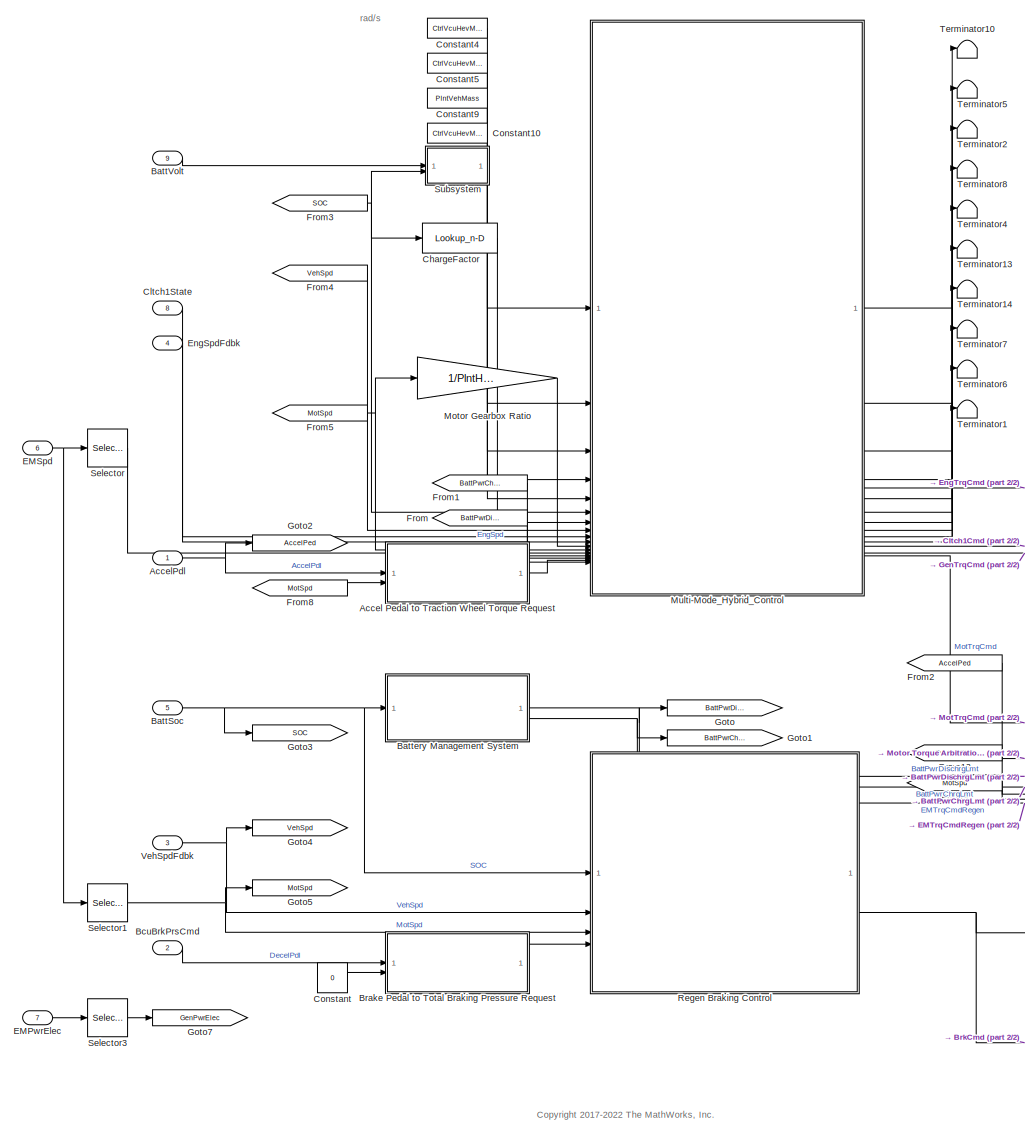
[diagram: root canvas - part 1/2, center side, full height]
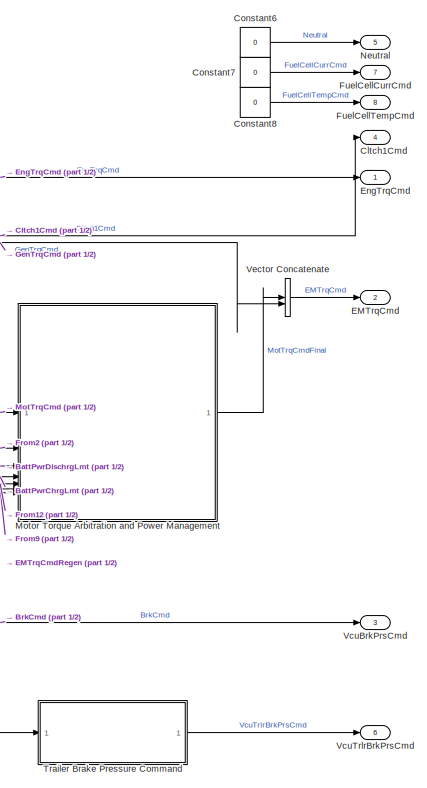
[diagram: root canvas - part 2/2, middle right region]
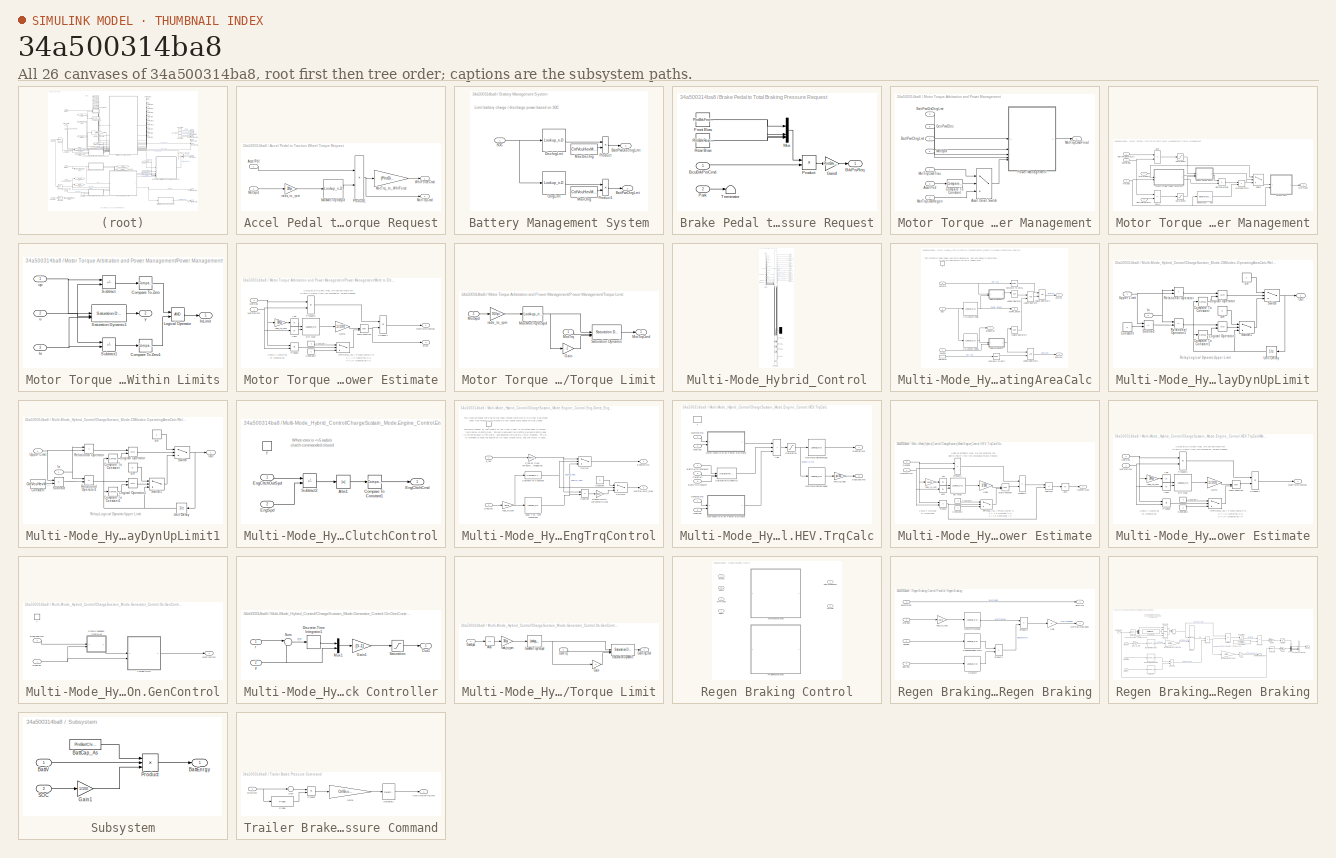
[diagram: thumbnail index - all 26 canvases of the model, root first then tree order]
MODEL slx_34a500314ba8
KIND model
BLOCK [SubSystem] Accel Pedal to Traction Wheel Torque Request
  InitFcn = [~]=autosharedicon('autolibinternalvvblock',gcb,0);
BLOCK [Inport] Accel Pedal to Traction Wheel Torque Request/AccelPdl
BLOCK [Lookup_n-D] Accel Pedal to Traction Wheel Torque Request/MaxMotTrqVsSpd
  BreakpointsForDimension1 = PlntEM1Spd*30/pi
  ExtrapMethod = Clip
  InputPortMap = u0
  InternalRulePriority = Speed
  NumberOfTableDimensions = 1
  OutDataTypeStr = Inherit: Inherit from 'Table data'
  RndMeth = Simplest
  Table = PlntEM1Trq
  UseLastTableValue = on
BLOCK [Inport] Accel Pedal to Traction Wheel Torque Request/MotSpd
  Port = 2
BLOCK [Outport] Accel Pedal to Traction Wheel Torque Request/MotTrqCmd
  Port = 2
  VectorParamsAs1DForOutWhenUnconnected = off
BLOCK [Gain] Accel Pedal to Traction Wheel Torque Request/MotTrq_to_WhlForce
  Gain = (PlntDiffrntlRatio*PlntHevMmMotGearRatio)/PlntWhlLdRadiusFrnt
BLOCK [Product] Accel Pedal to Traction Wheel Torque Request/Product1
BLOCK [Outport] Accel Pedal to Traction Wheel Torque Request/WhlForceCmd
  VectorParamsAs1DForOutWhenUnconnected = off
BLOCK [Gain] Accel Pedal to Traction Wheel Torque Request/rads_to_rpm
  Gain = 30/pi
BLOCK [Inport] AccelPdl
  OutDataTypeStr = double
  PortDimensions = 1
  SamplingMode = Sample based
  SignalType = real
BLOCK [Inport] BattSoc
  OutDataTypeStr = double
  Port = 5
  PortDimensions = 1
  SamplingMode = Sample based
  SignalType = real
BLOCK [Inport] BattVolt
  OutDataTypeStr = double
  Port = 9
  PortDimensions = 1
BLOCK [SubSystem] Battery Management System
BLOCK [Outport] Battery Management System/BattPwrChrgLmt
  Port = 2
  VectorParamsAs1DForOutWhenUnconnected = off
BLOCK [Outport] Battery Management System/BattPwrDischrgLmt
  VectorParamsAs1DForOutWhenUnconnected = off
BLOCK [Lookup_n-D] Battery Management System/ChrgLmt
  BreakpointsForDimension1 = CtrlVcuHevMmSocBpt
  ExtrapMethod = Clip
  InputPortMap = u0
  InternalRulePriority = Speed
  NumberOfTableDimensions = 1
  RndMeth = Simplest
  Table = CtrlVcuHevMmChrgLmtBpt
  UseLastTableValue = on
BLOCK [Lookup_n-D] Battery Management System/DischrgLmt
  BreakpointsForDimension1 = CtrlVcuHevMmSocBpt
  ExtrapMethod = Clip
  InputPortMap = u0
  InternalRulePriority = Speed
  NumberOfTableDimensions = 1
  RndMeth = Simplest
  Table = CtrlVcuHevMmDischrgLmtBpt
  UseLastTableValue = on
BLOCK [Constant] Battery Management System/MaxChrg
  SampleTime = -1
  Value = CtrlVcuHevMmBattChrgPwrMax
BLOCK [Constant] Battery Management System/MaxDischrg
  SampleTime = -1
  Value = CtrlVcuHevMmBattDischrgPwrMax
BLOCK [Product] Battery Management System/Product
BLOCK [Product] Battery Management System/Product1
BLOCK [Inport] Battery Management System/SOC
BLOCK [Inport] BcuBrkPrsCmd
  OutDataTypeStr = double
  Port = 2
  PortDimensions = 4
  SamplingMode = Sample based
  SignalType = real
BLOCK [SubSystem] Brake Pedal to Total Braking Pressure Request
BLOCK [Inport] Brake Pedal to Total Braking Pressure Request/BcuBrkPrsCmd
BLOCK [Outport] Brake Pedal to Total Braking Pressure Request/BrkPrsReq
  VectorParamsAs1DForOutWhenUnconnected = off
BLOCK [Constant] Brake Pedal to Total Braking Pressure Request/Front Bias
  NameLocation = top
  SampleTime = -1
  Value = PlntBrkFrntBias
BLOCK [Gain] Brake Pedal to Total Braking Pressure Request/Gain4
  Gain = PlntBrkPrsFctr
BLOCK [Mux] Brake Pedal to Total Braking Pressure Request/Mux
  DisplayOption = bar
BLOCK [Inport] Brake Pedal to Total Braking Pressure Request/Park
  Port = 2
BLOCK [Product] Brake Pedal to Total Braking Pressure Request/Product
BLOCK [Constant] Brake Pedal to Total Braking Pressure Request/Rear Bias
  SampleTime = -1
  Value = PlntBrkRearBias
BLOCK [Terminator] Brake Pedal to Total Braking Pressure Request/Terminator
BLOCK [Lookup_n-D] ChargeFactor
  BreakpointsForDimension1 = [CtrlVcuHevMmSOCmin CtrlVcuHevMmSOCtarget CtrlVcuHevMmSOCmax]
  ExtrapMethod = Clip
  InputPortMap = u0
  InternalRulePriority = Speed
  NumberOfTableDimensions = 1
  RndMeth = Simplest
  Table = CtrlVcuHevMmSOCChrgFctr
  UseLastTableValue = on
BLOCK [Outport] Cltch1Cmd
  OutDataTypeStr = double
  Port = 4
  PortDimensions = 1
  SamplingMode = Sample based
  SignalType = real
  VectorParamsAs1DForOutWhenUnconnected = off
BLOCK [Inport] Cltch1State
  OutDataTypeStr = boolean
  Port = 8
  PortDimensions = 1
BLOCK [Constant] Constant
  SampleTime = -1
  Value = 0
BLOCK [Constant] Constant10
  SampleTime = -1
  Value = CtrlVcuHevMmCSChrgFctr
BLOCK [Constant] Constant4
  SampleTime = -1
  Value = CtrlVcuHevMmN_idle*pi/30
BLOCK [Constant] Constant5
  SampleTime = -1
  Value = CtrlVcuHevMmSOCtarget
BLOCK [Constant] Constant6
  SampleTime = -1
  Value = 0
BLOCK [Constant] Constant7
  SampleTime = -1
  Value = 0
BLOCK [Constant] Constant8
  SampleTime = -1
  Value = 0
BLOCK [Constant] Constant9
  SampleTime = -1
  Value = PlntVehMass
BLOCK [Inport] EMPwrElec
  OutDataTypeStr = double
  Port = 7
  PortDimensions = 2
  SamplingMode = Sample based
  SignalType = real
BLOCK [Inport] EMSpd
  OutDataTypeStr = double
  Port = 6
  PortDimensions = 2
  SamplingMode = Sample based
  SignalType = real
BLOCK [Outport] EMTrqCmd
  OutDataTypeStr = double
  Port = 2
  PortDimensions = 2
  SamplingMode = Sample based
  SignalType = real
  VectorParamsAs1DForOutWhenUnconnected = off
BLOCK [Inport] EngSpdFdbk
  OutDataTypeStr = double
  Port = 4
  PortDimensions = 1
  SamplingMode = Sample based
  SignalType = real
BLOCK [Outport] EngTrqCmd
  OutDataTypeStr = double
  PortDimensions = 1
  SamplingMode = Sample based
  SignalType = real
  VectorParamsAs1DForOutWhenUnconnected = off
BLOCK [From] From
  GotoTag = BattPwrDischrgLmt
BLOCK [From] From1
  GotoTag = BattPwrChrgLmt
BLOCK [From] From12
  GotoTag = GenPwrElec
BLOCK [From] From2
  GotoTag = AccelPed
BLOCK [From] From3
  GotoTag = SOC
BLOCK [From] From4
  GotoTag = VehSpd
BLOCK [From] From5
  GotoTag = MotSpd
BLOCK [From] From8
  GotoTag = MotSpd
BLOCK [From] From9
  GotoTag = MotSpd
BLOCK [Outport] FuelCellCurrCmd
  OutDataTypeStr = double
  Port = 7
  PortDimensions = 1
BLOCK [Outport] FuelCellTempCmd
  OutDataTypeStr = double
  Port = 8
  PortDimensions = 1
BLOCK [Goto] Goto
  GotoTag = BattPwrDischrgLmt
BLOCK [Goto] Goto1
  GotoTag = BattPwrChrgLmt
BLOCK [Goto] Goto2
  GotoTag = AccelPed
BLOCK [Goto] Goto3
  GotoTag = SOC
BLOCK [Goto] Goto4
  GotoTag = VehSpd
BLOCK [Goto] Goto5
  GotoTag = MotSpd
BLOCK [Goto] Goto7
  GotoTag = GenPwrElec
BLOCK [Gain] Motor Gearbox Ratio
  Gain = 1/PlntHevMmMotGearRatio
BLOCK [SubSystem] Motor Torque Arbitration and Power Management
BLOCK [Switch] Motor Torque Arbitration and Power Management/Accel Decel Switch
  Criteria = u2 > Threshold
  InputSameDT = off
  SaturateOnIntegerOverflow = off
BLOCK [Inport] Motor Torque Arbitration and Power Management/AccelPed
  Port = 2
BLOCK [Inport] Motor Torque Arbitration and Power Management/BattPwrChrgLmt 
  Port = 4
BLOCK [Inport] Motor Torque Arbitration and Power Management/BattPwrDisChrgLmt
  Port = 3
BLOCK [Reference] Motor Torque Arbitration and Power Management/Compare To Constant  REF=simulink/Logic and Bit
Operations/Compare
To Constant
  SourceBlock = simulink/Logic and Bit\nOperations/Compare\nTo Constant
  SourceType = Compare To Constant
BLOCK [Inport] Motor Torque Arbitration and Power Management/GenPwrElec
  Port = 5
BLOCK [Inport] Motor Torque Arbitration and Power Management/MotSpd
  Port = 6
BLOCK [Outport] Motor Torque Arbitration and Power Management/MotTrqCmdFinal
  VectorParamsAs1DForOutWhenUnconnected = off
BLOCK [Inport] Motor Torque Arbitration and Power Management/MotTrqCmdRegen
  Port = 7
BLOCK [Inport] Motor Torque Arbitration and Power Management/MotTrqCmdTrac
BLOCK [SubSystem] Motor Torque Arbitration and Power Management/Power Management
BLOCK [Inport] Motor Torque Arbitration and Power Management/Power Management/BattPwrChrgLmt
  Port = 3
BLOCK [Inport] Motor Torque Arbitration and Power Management/Power Management/BattPwrDischrgLmt
BLOCK [SubSystem] Motor Torque Arbitration and Power Management/Power Management/Check Within Limits
BLOCK [Reference] Motor Torque Arbitration and Power Management/Power Management/Check Within Limits/Compare To Zero  REF=simulink/Logic and Bit
Operations/Compare
To Zero
  SourceBlock = simulink/Logic and Bit\nOperations/Compare\nTo Zero
  SourceType = Compare To Zero
BLOCK [Reference] Motor Torque Arbitration and Power Management/Power Management/Check Within Limits/Compare To Zero1  REF=simulink/Logic and Bit
Operations/Compare
To Zero
  SourceBlock = simulink/Logic and Bit\nOperations/Compare\nTo Zero
  SourceType = Compare To Zero
BLOCK [Outport] Motor Torque Arbitration and Power Management/Power Management/Check Within Limits/InLimit
  VectorParamsAs1DForOutWhenUnconnected = off
BLOCK [Logic] Motor Torque Arbitration and Power Management/Power Management/Check Within Limits/Logical Operator
  AllPortsSameDT = off
  OutDataTypeStr = boolean
BLOCK [Reference] Motor Torque Arbitration and Power Management/Power Management/Check Within Limits/Saturation Dynamic1  REF=simulink/Discontinuities/Saturation
Dynamic
  SourceBlock = simulink/Discontinuities/Saturation\nDynamic
  SourceType = Saturation Dynamic
BLOCK [Sum] Motor Torque Arbitration and Power Management/Power Management/Check Within Limits/Subtract
  IconShape = rectangular
  Inputs = +-
BLOCK [Sum] Motor Torque Arbitration and Power Management/Power Management/Check Within Limits/Subtract1
  IconShape = rectangular
  Inputs = -+
BLOCK [Inport] Motor Torque Arbitration and Power Management/Power Management/Check Within Limits/lo
  Port = 3
BLOCK [Inport] Motor Torque Arbitration and Power Management/Power Management/Check Within Limits/u
  Port = 2
BLOCK [Inport] Motor Torque Arbitration and Power Management/Power Management/Check Within Limits/up
BLOCK [Outport] Motor Torque Arbitration and Power Management/Power Management/Check Within Limits/y
  Port = 2
  VectorParamsAs1DForOutWhenUnconnected = off
BLOCK [Product] Motor Torque Arbitration and Power Management/Power Management/ElecToMechPwr
  Inputs = */
BLOCK [Inport] Motor Torque Arbitration and Power Management/Power Management/GenPwrElec
  Port = 2
BLOCK [SubSystem] Motor Torque Arbitration and Power Management/Power Management/Mech to Elec Power Estimate
BLOCK [Abs] Motor Torque Arbitration and Power Management/Power Management/Mech to Elec Power Estimate/Abs
  SaturateOnIntegerOverflow = off
BLOCK [Abs] Motor Torque Arbitration and Power Management/Power Management/Mech to Elec Power Estimate/Abs1
  SaturateOnIntegerOverflow = off
BLOCK [Constant] Motor Torque Arbitration and Power Management/Power Management/Mech to Elec Power Estimate/Constant1
  SampleTime = -1
  Value = -1
BLOCK [Constant] Motor Torque Arbitration and Power Management/Power Management/Mech to Elec Power Estimate/Constant2
  SampleTime = -1
BLOCK [Lookup_n-D] Motor Torque Arbitration and Power Management/Power Management/Mech to Elec Power Estimate/Eff Map
  BreakpointsForDimension1 = PlntEM1SpdEff*30/pi
  BreakpointsForDimension2 = PlntEM1TrqEff
  ExtrapMethod = Clip
  InputPortMap = u0,u1
  InternalRulePriority = Speed
  OutDataTypeStr = Inherit: Inherit from 'Table data'
  RndMeth = Simplest
  Table = PlntEM1EffTbl
  UseLastTableValue = on
BLOCK [Gain] Motor Torque Arbitration and Power Management/Power Management/Mech to Elec Power Estimate/Gain1
  Gain = 1/100
BLOCK [Math] Motor Torque Arbitration and Power Management/Power Management/Mech to Elec Power Estimate/Math Function
  Operator = pow
  OutputSignalType = real
  SignedPower = on
BLOCK [Outport] Motor Torque Arbitration and Power Management/Power Management/Mech to Elec Power Estimate/MotPwrElecReq
  VectorParamsAs1DForOutWhenUnconnected = off
BLOCK [Inport] Motor Torque Arbitration and Power Management/Power Management/Mech to Elec Power Estimate/MotSpd
  Port = 2
BLOCK [Inport] Motor Torque Arbitration and Power Management/Power Management/Mech to Elec Power Estimate/MotTrqCmd
BLOCK [Product] Motor Torque Arbitration and Power Management/Power Management/Mech to Elec Power Estimate/Product
BLOCK [Product] Motor Torque Arbitration and Power Management/Power Management/Mech to Elec Power Estimate/Product3
BLOCK [Product] Motor Torque Arbitration and Power Management/Power Management/Mech to Elec Power Estimate/Product4
BLOCK [Switch] Motor Torque Arbitration and Power Management/Power Management/Mech to Elec Power Estimate/Switch2
  InputSameDT = off
  SaturateOnIntegerOverflow = off
BLOCK [Outport] Motor Torque Arbitration and Power Management/Power Management/Mech to Elec Power Estimate/eff2k
  Port = 2
  VectorParamsAs1DForOutWhenUnconnected = off
BLOCK [Gain] Motor Torque Arbitration and Power Management/Power Management/Mech to Elec Power Estimate/rads_to_rpm
  Gain = 30/pi
  NameLocation = top
BLOCK [Product] Motor Torque Arbitration and Power Management/Power Management/MechPwrToTrq
  Inputs = */
BLOCK [Inport] Motor Torque Arbitration and Power Management/Power Management/MotSpd
  Port = 4
BLOCK [Inport] Motor Torque Arbitration and Power Management/Power Management/MotTrqCmd
  Port = 5
BLOCK [Outport] Motor Torque Arbitration and Power Management/Power Management/MotTrqLim
  VectorParamsAs1DForOutWhenUnconnected = off
BLOCK [Saturate] Motor Torque Arbitration and Power Management/Power Management/Saturation1
  LowerLimit = 0
  UpperLimit = inf
BLOCK [Saturate] Motor Torque Arbitration and Power Management/Power Management/Saturation2
  LowerLimit = -inf
  UpperLimit = 0
BLOCK [Sum] Motor Torque Arbitration and Power Management/Power Management/Sum
  IconShape = rectangular
  Inputs = +-
BLOCK [Sum] Motor Torque Arbitration and Power Management/Power Management/Sum4
  IconShape = rectangular
  Inputs = -+
BLOCK [Switch] Motor Torque Arbitration and Power Management/Power Management/Switch
  Criteria = u2 > Threshold
  InputSameDT = off
  SaturateOnIntegerOverflow = off
BLOCK [SubSystem] Motor Torque Arbitration and Power Management/Power Management/Torque Limit
BLOCK [Gain] Motor Torque Arbitration and Power Management/Power Management/Torque Limit/Gain
  Gain = -1
BLOCK [Lookup_n-D] Motor Torque Arbitration and Power Management/Power Management/Torque Limit/MaxMotTrqVsSpd
  BreakpointsForDimension1 = PlntEM1Spd*30/pi
  ExtrapMethod = Clip
  InputPortMap = u0
  InternalRulePriority = Speed
  NumberOfTableDimensions = 1
  OutDataTypeStr = Inherit: Inherit from 'Table data'
  RndMeth = Simplest
  Table = PlntEM1Trq
  UseLastTableValue = on
BLOCK [Inport] Motor Torque Arbitration and Power Management/Power Management/Torque Limit/MotSpd
  Port = 2
BLOCK [Inport] Motor Torque Arbitration and Power Management/Power Management/Torque Limit/MotTrq
BLOCK [Outport] Motor Torque Arbitration and Power Management/Power Management/Torque Limit/MotTrqCmd
  VectorParamsAs1DForOutWhenUnconnected = off
BLOCK [Reference] Motor Torque Arbitration and Power Management/Power Management/Torque Limit/Saturation Dynamic  REF=simulink/Discontinuities/Saturation
Dynamic
  SourceBlock = simulink/Discontinuities/Saturation\nDynamic
  SourceType = Saturation Dynamic
BLOCK [Gain] Motor Torque Arbitration and Power Management/Power Management/Torque Limit/rads_to_rpm
  Gain = 30/pi
BLOCK [Reference] Motor Torque Arbitration and Power Management/Power Management/div0protect - poly  REF=autolibutils/div0protect - poly
  SourceBlock = autolibutils/div0protect - poly
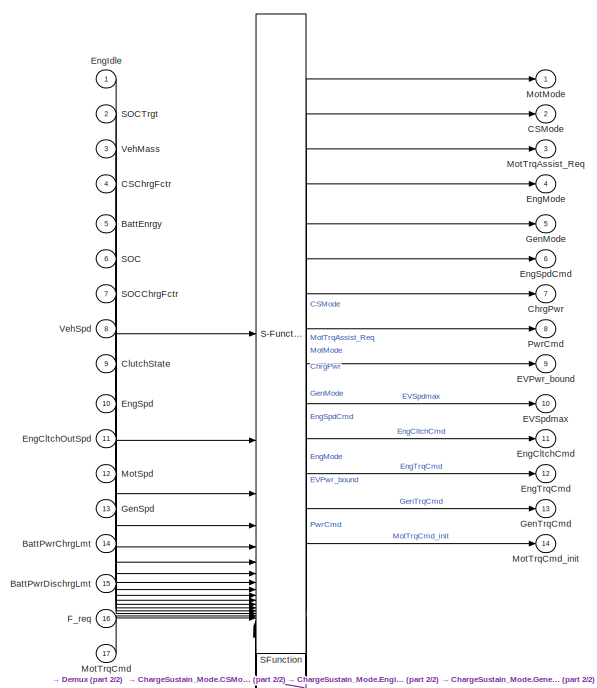
[diagram: Multi-Mode_Hybrid_Control - part 1/2, full width, top band]
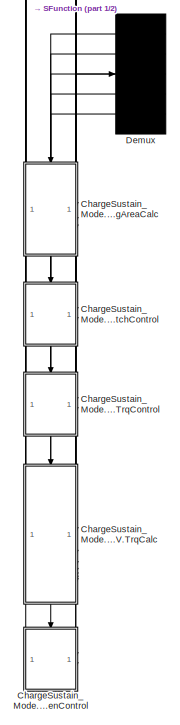
[diagram: Multi-Mode_Hybrid_Control - part 2/2, bottom center region]
BLOCK [SubSystem] Multi-Mode_Hybrid_Control
  ErrorFcn = Stateflow.Translate.translate
  PermitHierarchicalResolution = ExplicitOnly
  SFBlockType = Chart
  TreatAsAtomicUnit = on
BLOCK [Demux] Multi-Mode_Hybrid_Control/ Demux 
  Outputs = 5
BLOCK [S-Function] Multi-Mode_Hybrid_Control/ SFunction 
  EnableBusSupport = off
  FunctionName = sf_sfun
  PortCounts = [27 31]
  SFcnIsStateOwnerBlock = off
  SFunctionDeploymentMode = off
  Tag = Stateflow S-Function 3
BLOCK [Inport] Multi-Mode_Hybrid_Control/BattEnrgy
  Port = 5
BLOCK [Inport] Multi-Mode_Hybrid_Control/BattPwrChrgLmt
  Port = 14
BLOCK [Inport] Multi-Mode_Hybrid_Control/BattPwrDischrgLmt
  Port = 15
BLOCK [Inport] Multi-Mode_Hybrid_Control/CSChrgFctr
  Port = 4
BLOCK [Outport] Multi-Mode_Hybrid_Control/CSMode
  Port = 2
  VectorParamsAs1DForOutWhenUnconnected = off
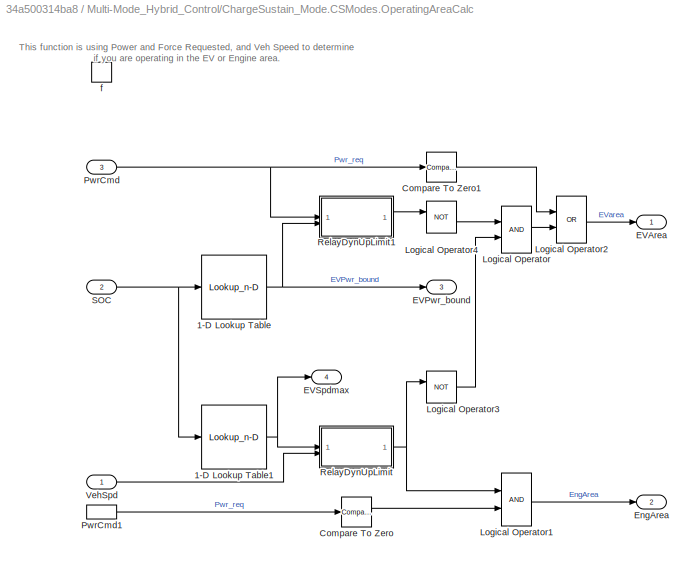
BLOCK [SubSystem] Multi-Mode_Hybrid_Control/ChargeSustain_Mode.CSModes.OperatingAreaCalc
  PreDeleteFcn = Stateflow.SLINSF.SimulinkMan.removePreDeleteFcn
  UndoDeleteFcn = Stateflow.SLINSF.SimulinkMan.restorePreDeleteFcn
BLOCK [Lookup_n-D] Multi-Mode_Hybrid_Control/ChargeSustain_Mode.CSModes.OperatingAreaCalc/1-D Lookup Table
  BreakpointsForDimension1 = [CtrlVcuHevMmSOCmin CtrlVcuHevMmSOCtarget CtrlVcuHevMmSOCmax]
  ExtrapMethod = Clip
  InputPortMap = u0
  InternalRulePriority = Speed
  NumberOfTableDimensions = 1
  RndMeth = Simplest
  Table = [0 CtrlVcuHevMmEngPwr(4) CtrlVcuHevMmBattDischrgPwrMax]
  UseLastTableValue = on
BLOCK [Lookup_n-D] Multi-Mode_Hybrid_Control/ChargeSustain_Mode.CSModes.OperatingAreaCalc/1-D Lookup Table1
  BreakpointsForDimension1 = [CtrlVcuHevMmSOCtarget CtrlVcuHevMmSOCmax]
  ExtrapMethod = Clip
  InputPortMap = u0
  InternalRulePriority = Speed
  NumberOfTableDimensions = 1
  RndMeth = Simplest
  Table = [24.6 33.5]
  UseLastTableValue = on
BLOCK [Reference] Multi-Mode_Hybrid_Control/ChargeSustain_Mode.CSModes.OperatingAreaCalc/Compare To Zero  REF=simulink/Logic and Bit
Operations/Compare
To Zero
  SourceBlock = simulink/Logic and Bit\nOperations/Compare\nTo Zero
  SourceType = Compare To Zero
BLOCK [Reference] Multi-Mode_Hybrid_Control/ChargeSustain_Mode.CSModes.OperatingAreaCalc/Compare To Zero1  REF=simulink/Logic and Bit
Operations/Compare
To Zero
  SourceBlock = simulink/Logic and Bit\nOperations/Compare\nTo Zero
  SourceType = Compare To Zero
BLOCK [Outport] Multi-Mode_Hybrid_Control/ChargeSustain_Mode.CSModes.OperatingAreaCalc/EVArea
  VectorParamsAs1DForOutWhenUnconnected = off
BLOCK [Outport] Multi-Mode_Hybrid_Control/ChargeSustain_Mode.CSModes.OperatingAreaCalc/EVPwr_bound
  Port = 3
  VectorParamsAs1DForOutWhenUnconnected = off
BLOCK [Outport] Multi-Mode_Hybrid_Control/ChargeSustain_Mode.CSModes.OperatingAreaCalc/EVSpdmax
  Port = 4
  VectorParamsAs1DForOutWhenUnconnected = off
BLOCK [Outport] Multi-Mode_Hybrid_Control/ChargeSustain_Mode.CSModes.OperatingAreaCalc/EngArea
  Port = 2
  VectorParamsAs1DForOutWhenUnconnected = off
BLOCK [Logic] Multi-Mode_Hybrid_Control/ChargeSustain_Mode.CSModes.OperatingAreaCalc/Logical Operator
  AllPortsSameDT = off
  OutDataTypeStr = boolean
BLOCK [Logic] Multi-Mode_Hybrid_Control/ChargeSustain_Mode.CSModes.OperatingAreaCalc/Logical Operator1
  AllPortsSameDT = off
  OutDataTypeStr = boolean
BLOCK [Logic] Multi-Mode_Hybrid_Control/ChargeSustain_Mode.CSModes.OperatingAreaCalc/Logical Operator2
  AllPortsSameDT = off
  Operator = OR
  OutDataTypeStr = boolean
BLOCK [Logic] Multi-Mode_Hybrid_Control/ChargeSustain_Mode.CSModes.OperatingAreaCalc/Logical Operator3
  AllPortsSameDT = off
  Operator = NOT
  OutDataTypeStr = boolean
BLOCK [Logic] Multi-Mode_Hybrid_Control/ChargeSustain_Mode.CSModes.OperatingAreaCalc/Logical Operator4
  AllPortsSameDT = off
  Operator = NOT
  OutDataTypeStr = boolean
BLOCK [Inport] Multi-Mode_Hybrid_Control/ChargeSustain_Mode.CSModes.OperatingAreaCalc/PwrCmd
  Port = 3
BLOCK [InportShadow] Multi-Mode_Hybrid_Control/ChargeSustain_Mode.CSModes.OperatingAreaCalc/PwrCmd1
  Port = 3
BLOCK [SubSystem] Multi-Mode_Hybrid_Control/ChargeSustain_Mode.CSModes.OperatingAreaCalc/RelayDynUpLimit
BLOCK [Reference] Multi-Mode_Hybrid_Control/ChargeSustain_Mode.CSModes.OperatingAreaCalc/RelayDynUpLimit/Compare To Constant  REF=simulink/Logic and Bit
Operations/Compare
To Constant
  SourceBlock = simulink/Logic and Bit\nOperations/Compare\nTo Constant
  SourceType = Compare To Constant
BLOCK [Reference] Multi-Mode_Hybrid_Control/ChargeSustain_Mode.CSModes.OperatingAreaCalc/RelayDynUpLimit/Compare To Constant1  REF=simulink/Logic and Bit
Operations/Compare
To Constant
  SourceBlock = simulink/Logic and Bit\nOperations/Compare\nTo Constant
  SourceType = Compare To Constant
BLOCK [Constant] Multi-Mode_Hybrid_Control/ChargeSustain_Mode.CSModes.OperatingAreaCalc/RelayDynUpLimit/Constant
  Value = 5
BLOCK [Inport] Multi-Mode_Hybrid_Control/ChargeSustain_Mode.CSModes.OperatingAreaCalc/RelayDynUpLimit/In
  Port = 2
BLOCK [Logic] Multi-Mode_Hybrid_Control/ChargeSustain_Mode.CSModes.OperatingAreaCalc/RelayDynUpLimit/Logical Operator
  AllPortsSameDT = off
  OutDataTypeStr = boolean
BLOCK [Logic] Multi-Mode_Hybrid_Control/ChargeSustain_Mode.CSModes.OperatingAreaCalc/RelayDynUpLimit/Logical Operator1
  AllPortsSameDT = off
  OutDataTypeStr = boolean
BLOCK [Outport] Multi-Mode_Hybrid_Control/ChargeSustain_Mode.CSModes.OperatingAreaCalc/RelayDynUpLimit/Out
  VectorParamsAs1DForOutWhenUnconnected = off
BLOCK [RelationalOperator] Multi-Mode_Hybrid_Control/ChargeSustain_Mode.CSModes.OperatingAreaCalc/RelayDynUpLimit/Relational Operator
  InputSameDT = off
  Operator = >
  OutDataTypeStr = boolean
  RndMeth = Simplest
BLOCK [RelationalOperator] Multi-Mode_Hybrid_Control/ChargeSustain_Mode.CSModes.OperatingAreaCalc/RelayDynUpLimit/Relational Operator1
  InputSameDT = off
  Operator = <=
  OutDataTypeStr = boolean
  RndMeth = Simplest
BLOCK [Sum] Multi-Mode_Hybrid_Control/ChargeSustain_Mode.CSModes.OperatingAreaCalc/RelayDynUpLimit/Subtract
  IconShape = rectangular
  Inputs = +-
BLOCK [Switch] Multi-Mode_Hybrid_Control/ChargeSustain_Mode.CSModes.OperatingAreaCalc/RelayDynUpLimit/Switch
  Criteria = u2 > Threshold
  InputSameDT = off
  SaturateOnIntegerOverflow = off
BLOCK [Switch] Multi-Mode_Hybrid_Control/ChargeSustain_Mode.CSModes.OperatingAreaCalc/RelayDynUpLimit/Switch1
  Criteria = u2 > Threshold
  InputSameDT = off
  SaturateOnIntegerOverflow = off
BLOCK [UnitDelay] Multi-Mode_Hybrid_Control/ChargeSustain_Mode.CSModes.OperatingAreaCalc/RelayDynUpLimit/Unit Delay
  HasFrameUpgradeWarning = on
  SampleTime = -1
BLOCK [Inport] Multi-Mode_Hybrid_Control/ChargeSustain_Mode.CSModes.OperatingAreaCalc/RelayDynUpLimit/Upper Limit
BLOCK [Constant] Multi-Mode_Hybrid_Control/ChargeSustain_Mode.CSModes.OperatingAreaCalc/RelayDynUpLimit/off
  OutDataTypeStr = boolean
  Value = 0
BLOCK [Constant] Multi-Mode_Hybrid_Control/ChargeSustain_Mode.CSModes.OperatingAreaCalc/RelayDynUpLimit/on
  OutDataTypeStr = boolean
BLOCK [SubSystem] Multi-Mode_Hybrid_Control/ChargeSustain_Mode.CSModes.OperatingAreaCalc/RelayDynUpLimit1
BLOCK [Reference] Multi-Mode_Hybrid_Control/ChargeSustain_Mode.CSModes.OperatingAreaCalc/RelayDynUpLimit1/Compare To Constant  REF=simulink/Logic and Bit
Operations/Compare
To Constant
  SourceBlock = simulink/Logic and Bit\nOperations/Compare\nTo Constant
  SourceType = Compare To Constant
BLOCK [Reference] Multi-Mode_Hybrid_Control/ChargeSustain_Mode.CSModes.OperatingAreaCalc/RelayDynUpLimit1/Compare To Constant1  REF=simulink/Logic and Bit
Operations/Compare
To Constant
  SourceBlock = simulink/Logic and Bit\nOperations/Compare\nTo Constant
  SourceType = Compare To Constant
BLOCK [Constant] Multi-Mode_Hybrid_Control/ChargeSustain_Mode.CSModes.OperatingAreaCalc/RelayDynUpLimit1/Constant
  Value = CtrlVcuHevMmEngPwr(3)
BLOCK [Inport] Multi-Mode_Hybrid_Control/ChargeSustain_Mode.CSModes.OperatingAreaCalc/RelayDynUpLimit1/In
BLOCK [Logic] Multi-Mode_Hybrid_Control/ChargeSustain_Mode.CSModes.OperatingAreaCalc/RelayDynUpLimit1/Logical Operator
  AllPortsSameDT = off
  OutDataTypeStr = boolean
BLOCK [Logic] Multi-Mode_Hybrid_Control/ChargeSustain_Mode.CSModes.OperatingAreaCalc/RelayDynUpLimit1/Logical Operator1
  AllPortsSameDT = off
  OutDataTypeStr = boolean
BLOCK [Outport] Multi-Mode_Hybrid_Control/ChargeSustain_Mode.CSModes.OperatingAreaCalc/RelayDynUpLimit1/Out
  VectorParamsAs1DForOutWhenUnconnected = off
BLOCK [RelationalOperator] Multi-Mode_Hybrid_Control/ChargeSustain_Mode.CSModes.OperatingAreaCalc/RelayDynUpLimit1/Relational Operator
  InputSameDT = off
  Operator = >
  OutDataTypeStr = boolean
  RndMeth = Simplest
BLOCK [RelationalOperator] Multi-Mode_Hybrid_Control/ChargeSustain_Mode.CSModes.OperatingAreaCalc/RelayDynUpLimit1/Relational Operator1
  InputSameDT = off
  Operator = <=
  OutDataTypeStr = boolean
  RndMeth = Simplest
BLOCK [Sum] Multi-Mode_Hybrid_Control/ChargeSustain_Mode.CSModes.OperatingAreaCalc/RelayDynUpLimit1/Subtract
  IconShape = rectangular
  Inputs = +-
BLOCK [Switch] Multi-Mode_Hybrid_Control/ChargeSustain_Mode.CSModes.OperatingAreaCalc/RelayDynUpLimit1/Switch
  Criteria = u2 > Threshold
  InputSameDT = off
  SaturateOnIntegerOverflow = off
BLOCK [Switch] Multi-Mode_Hybrid_Control/ChargeSustain_Mode.CSModes.OperatingAreaCalc/RelayDynUpLimit1/Switch1
  Criteria = u2 > Threshold
  InputSameDT = off
  SaturateOnIntegerOverflow = off
BLOCK [UnitDelay] Multi-Mode_Hybrid_Control/ChargeSustain_Mode.CSModes.OperatingAreaCalc/RelayDynUpLimit1/Unit Delay
  HasFrameUpgradeWarning = on
  SampleTime = -1
BLOCK [Inport] Multi-Mode_Hybrid_Control/ChargeSustain_Mode.CSModes.OperatingAreaCalc/RelayDynUpLimit1/Upper Limit
  Port = 2
BLOCK [Constant] Multi-Mode_Hybrid_Control/ChargeSustain_Mode.CSModes.OperatingAreaCalc/RelayDynUpLimit1/off
  OutDataTypeStr = boolean
  Value = 0
BLOCK [Constant] Multi-Mode_Hybrid_Control/ChargeSustain_Mode.CSModes.OperatingAreaCalc/RelayDynUpLimit1/on
  OutDataTypeStr = boolean
BLOCK [Inport] Multi-Mode_Hybrid_Control/ChargeSustain_Mode.CSModes.OperatingAreaCalc/SOC
  Port = 2
  PortDimensions = 1
  SignalType = real
  VarSizeSig = No
BLOCK [Inport] Multi-Mode_Hybrid_Control/ChargeSustain_Mode.CSModes.OperatingAreaCalc/VehSpd
  PortDimensions = 1
  SignalType = real
  VarSizeSig = No
BLOCK [TriggerPort] Multi-Mode_Hybrid_Control/ChargeSustain_Mode.CSModes.OperatingAreaCalc/f
  CopyFcn = Stateflow.SLINSF.SimulinkMan.removeBlockPreDeleteFcn
  PreDeleteFcn = Stateflow.SLINSF.SimulinkMan.unsafePredeleteFcn
  StatesWhenEnabling = reset
  TriggerType = function-call
  VariantControl = Variant
BLOCK [SubSystem] Multi-Mode_Hybrid_Control/ChargeSustain_Mode.Engine_Control.Eng.Clutch_Close.ClutchControl
  PreDeleteFcn = Stateflow.SLINSF.SimulinkMan.removePreDeleteFcn
  UndoDeleteFcn = Stateflow.SLINSF.SimulinkMan.restorePreDeleteFcn
BLOCK [Abs] Multi-Mode_Hybrid_Control/ChargeSustain_Mode.Engine_Control.Eng.Clutch_Close.ClutchControl/Abs1
  SaturateOnIntegerOverflow = off
BLOCK [Reference] Multi-Mode_Hybrid_Control/ChargeSustain_Mode.Engine_Control.Eng.Clutch_Close.ClutchControl/Compare To Constant1  REF=simulink/Logic and Bit
Operations/Compare
To Constant
  SourceBlock = simulink/Logic and Bit\nOperations/Compare\nTo Constant
  SourceType = Compare To Constant
BLOCK [Outport] Multi-Mode_Hybrid_Control/ChargeSustain_Mode.Engine_Control.Eng.Clutch_Close.ClutchControl/EngCltchCmd
  VectorParamsAs1DForOutWhenUnconnected = off
BLOCK [Inport] Multi-Mode_Hybrid_Control/ChargeSustain_Mode.Engine_Control.Eng.Clutch_Close.ClutchControl/EngCltchOutSpd
BLOCK [Inport] Multi-Mode_Hybrid_Control/ChargeSustain_Mode.Engine_Control.Eng.Clutch_Close.ClutchControl/EngSpd
  Port = 2
BLOCK [Sum] Multi-Mode_Hybrid_Control/ChargeSustain_Mode.Engine_Control.Eng.Clutch_Close.ClutchControl/Subtract2
  IconShape = rectangular
  Inputs = +-
BLOCK [TriggerPort] Multi-Mode_Hybrid_Control/ChargeSustain_Mode.Engine_Control.Eng.Clutch_Close.ClutchControl/f
  CopyFcn = Stateflow.SLINSF.SimulinkMan.removeBlockPreDeleteFcn
  PreDeleteFcn = Stateflow.SLINSF.SimulinkMan.unsafePredeleteFcn
  SampleTime = -1
  StatesWhenEnabling = reset
  TriggerType = function-call
  VariantControl = Variant
BLOCK [SubSystem] Multi-Mode_Hybrid_Control/ChargeSustain_Mode.Engine_Control.Eng.Direct_Engine_Drive.EngTrqControl
  PreDeleteFcn = Stateflow.SLINSF.SimulinkMan.removePreDeleteFcn
  UndoDeleteFcn = Stateflow.SLINSF.SimulinkMan.restorePreDeleteFcn
BLOCK [Reference] Multi-Mode_Hybrid_Control/ChargeSustain_Mode.Engine_Control.Eng.Direct_Engine_Drive.EngTrqControl/Compare To Constant  REF=simulink/Logic and Bit
Operations/Compare
To Constant
  SourceBlock = simulink/Logic and Bit\nOperations/Compare\nTo Constant
  SourceType = Compare To Constant
BLOCK [Constant] Multi-Mode_Hybrid_Control/ChargeSustain_Mode.Engine_Control.Eng.Direct_Engine_Drive.EngTrqControl/Constant
  SampleTime = -1
  Value = 0
BLOCK [Inport] Multi-Mode_Hybrid_Control/ChargeSustain_Mode.Engine_Control.Eng.Direct_Engine_Drive.EngTrqControl/EngSpd
  Port = 2
BLOCK [Gain] Multi-Mode_Hybrid_Control/ChargeSustain_Mode.Engine_Control.Eng.Direct_Engine_Drive.EngTrqControl/EngTrq Delta reflected to Mot
  Gain = PlntHevMmGenGearRatio/PlntHevMmMotGearRatio
BLOCK [Outport] Multi-Mode_Hybrid_Control/ChargeSustain_Mode.Engine_Control.Eng.Direct_Engine_Drive.EngTrqControl/EngTrqCmd
  VectorParamsAs1DForOutWhenUnconnected = off
BLOCK [Inport] Multi-Mode_Hybrid_Control/ChargeSustain_Mode.Engine_Control.Eng.Direct_Engine_Drive.EngTrqControl/F_req
BLOCK [Gain] Multi-Mode_Hybrid_Control/ChargeSustain_Mode.Engine_Control.Eng.Direct_Engine_Drive.EngTrqControl/F_req at tires reflected back to Trq@Eng
  Gain = PlntWhlLdRadiusFrnt/(PlntDiffrntlRatio*PlntHevMmGenGearRatio)
BLOCK [Lookup_n-D] Multi-Mode_Hybrid_Control/ChargeSustain_Mode.Engine_Control.Eng.Direct_Engine_Drive.EngTrqControl/Ideal T vs. rpm (assumed)
  BreakpointsForDimension1 = CtrlVcuHevMmEngSpd
  BreakpointsForDimension1DataTypeStr = Inherit: Inherit from 'Breakpoint data'
  ExtrapMethod = Clip
  InputPortMap = u0
  IntermediateResultsDataTypeStr = Inherit: Inherit via internal rule
  InternalRulePriority = Speed
  NumberOfTableDimensions = 1
  OutDataTypeStr = single
  RndMeth = Simplest
  Table = CtrlVcuHevMmEngTrq
  TableDataTypeStr = Inherit: Inherit from 'Table data'
  UseLastTableValue = on
BLOCK [Outport] Multi-Mode_Hybrid_Control/ChargeSustain_Mode.Engine_Control.Eng.Direct_Engine_Drive.EngTrqControl/MotTrqAssist_Req
  Port = 2
  VectorParamsAs1DForOutWhenUnconnected = off
BLOCK [Sum] Multi-Mode_Hybrid_Control/ChargeSustain_Mode.Engine_Control.Eng.Direct_Engine_Drive.EngTrqControl/Subtract
  IconShape = rectangular
  Inputs = +-
BLOCK [Switch] Multi-Mode_Hybrid_Control/ChargeSustain_Mode.Engine_Control.Eng.Direct_Engine_Drive.EngTrqControl/Switch
  Criteria = u2 > Threshold
  InputSameDT = off
  SaturateOnIntegerOverflow = off
BLOCK [Switch] Multi-Mode_Hybrid_Control/ChargeSustain_Mode.Engine_Control.Eng.Direct_Engine_Drive.EngTrqControl/Switch1
  Criteria = u2 > Threshold
  InputSameDT = off
  SaturateOnIntegerOverflow = off
BLOCK [TriggerPort] Multi-Mode_Hybrid_Control/ChargeSustain_Mode.Engine_Control.Eng.Direct_Engine_Drive.EngTrqControl/f
  CopyFcn = Stateflow.SLINSF.SimulinkMan.removeBlockPreDeleteFcn
  PreDeleteFcn = Stateflow.SLINSF.SimulinkMan.unsafePredeleteFcn
  SampleTime = -1
  StatesWhenEnabling = reset
  TriggerType = function-call
  VariantControl = Variant
BLOCK [Gain] Multi-Mode_Hybrid_Control/ChargeSustain_Mode.Engine_Control.Eng.Direct_Engine_Drive.EngTrqControl/rads_to_rpm
  Gain = 30/pi
BLOCK [SubSystem] Multi-Mode_Hybrid_Control/ChargeSustain_Mode.Engine_Control.HEV.TrqCalc
  PreDeleteFcn = Stateflow.SLINSF.SimulinkMan.removePreDeleteFcn
  UndoDeleteFcn = Stateflow.SLINSF.SimulinkMan.restorePreDeleteFcn
BLOCK [Sum] Multi-Mode_Hybrid_Control/ChargeSustain_Mode.Engine_Control.HEV.TrqCalc/Add
  IconShape = rectangular
  Inputs = +++
BLOCK [Inport] Multi-Mode_Hybrid_Control/ChargeSustain_Mode.Engine_Control.HEV.TrqCalc/BattPwrChrgLmt
  Port = 5
BLOCK [Inport] Multi-Mode_Hybrid_Control/ChargeSustain_Mode.Engine_Control.HEV.TrqCalc/BattPwrDischrgLmt
  Port = 4
BLOCK [Inport] Multi-Mode_Hybrid_Control/ChargeSustain_Mode.Engine_Control.HEV.TrqCalc/ChrgPwr
  Port = 3
BLOCK [Outport] Multi-Mode_Hybrid_Control/ChargeSustain_Mode.Engine_Control.HEV.TrqCalc/EngSpdCmd
  Port = 2
  VectorParamsAs1DForOutWhenUnconnected = off
BLOCK [Outport] Multi-Mode_Hybrid_Control/ChargeSustain_Mode.Engine_Control.HEV.TrqCalc/EngTrqCmd
  VectorParamsAs1DForOutWhenUnconnected = off
BLOCK [SubSystem] Multi-Mode_Hybrid_Control/ChargeSustain_Mode.Engine_Control.HEV.TrqCalc/Gen Mech to Elec Power Estimate
BLOCK [Abs] Multi-Mode_Hybrid_Control/ChargeSustain_Mode.Engine_Control.HEV.TrqCalc/Gen Mech to Elec Power Estimate/Abs
  SaturateOnIntegerOverflow = off
BLOCK [Abs] Multi-Mode_Hybrid_Control/ChargeSustain_Mode.Engine_Control.HEV.TrqCalc/Gen Mech to Elec Power Estimate/Abs1
  SaturateOnIntegerOverflow = off
BLOCK [Abs] Multi-Mode_Hybrid_Control/ChargeSustain_Mode.Engine_Control.HEV.TrqCalc/Gen Mech to Elec Power Estimate/Abs4
  SaturateOnIntegerOverflow = off
BLOCK [Constant] Multi-Mode_Hybrid_Control/ChargeSustain_Mode.Engine_Control.HEV.TrqCalc/Gen Mech to Elec Power Estimate/Constant1
  SampleTime = -1
  Value = -1
BLOCK [Constant] Multi-Mode_Hybrid_Control/ChargeSustain_Mode.Engine_Control.HEV.TrqCalc/Gen Mech to Elec Power Estimate/Constant2
  SampleTime = -1
BLOCK [Lookup_n-D] Multi-Mode_Hybrid_Control/ChargeSustain_Mode.Engine_Control.HEV.TrqCalc/Gen Mech to Elec Power Estimate/Eff Map
  BreakpointsForDimension1 = PlntEM2SpdEff*30/pi
  BreakpointsForDimension2 = PlntEM2TrqEff
  ExtrapMethod = Clip
  InputPortMap = u0,u1
  InternalRulePriority = Speed
  OutDataTypeStr = Inherit: Inherit from 'Table data'
  RndMeth = Simplest
  Table = PlntEM2EffTbl
  UseLastTableValue = on
BLOCK [Gain] Multi-Mode_Hybrid_Control/ChargeSustain_Mode.Engine_Control.HEV.TrqCalc/Gen Mech to Elec Power Estimate/Gain1
  Gain = 1/100
BLOCK [Outport] Multi-Mode_Hybrid_Control/ChargeSustain_Mode.Engine_Control.HEV.TrqCalc/Gen Mech to Elec Power Estimate/GenPwrLoss
  VectorParamsAs1DForOutWhenUnconnected = off
BLOCK [Inport] Multi-Mode_Hybrid_Control/ChargeSustain_Mode.Engine_Control.HEV.TrqCalc/Gen Mech to Elec Power Estimate/GenSpd
  Port = 2
BLOCK [Inport] Multi-Mode_Hybrid_Control/ChargeSustain_Mode.Engine_Control.HEV.TrqCalc/Gen Mech to Elec Power Estimate/GenTrqCmd
BLOCK [Math] Multi-Mode_Hybrid_Control/ChargeSustain_Mode.Engine_Control.HEV.TrqCalc/Gen Mech to Elec Power Estimate/Math Function
  Operator = pow
  OutputSignalType = real
  SignedPower = on
BLOCK [Product] Multi-Mode_Hybrid_Control/ChargeSustain_Mode.Engine_Control.HEV.TrqCalc/Gen Mech to Elec Power Estimate/Product
BLOCK [Product] Multi-Mode_Hybrid_Control/ChargeSustain_Mode.Engine_Control.HEV.TrqCalc/Gen Mech to Elec Power Estimate/Product3
BLOCK [Product] Multi-Mode_Hybrid_Control/ChargeSustain_Mode.Engine_Control.HEV.TrqCalc/Gen Mech to Elec Power Estimate/Product4
BLOCK [Sum] Multi-Mode_Hybrid_Control/ChargeSustain_Mode.Engine_Control.HEV.TrqCalc/Gen Mech to Elec Power Estimate/Subtract
  IconShape = rectangular
  Inputs = +-
BLOCK [Switch] Multi-Mode_Hybrid_Control/ChargeSustain_Mode.Engine_Control.HEV.TrqCalc/Gen Mech to Elec Power Estimate/Switch2
  InputSameDT = off
  SaturateOnIntegerOverflow = off
BLOCK [Gain] Multi-Mode_Hybrid_Control/ChargeSustain_Mode.Engine_Control.HEV.TrqCalc/Gen Mech to Elec Power Estimate/rads_to_rpm
  Gain = 30/pi
  NameLocation = top
BLOCK [Inport] Multi-Mode_Hybrid_Control/ChargeSustain_Mode.Engine_Control.HEV.TrqCalc/GenSpd
  Port = 6
BLOCK [Inport] Multi-Mode_Hybrid_Control/ChargeSustain_Mode.Engine_Control.HEV.TrqCalc/GenTrqCmd
  Port = 7
BLOCK [Inport] Multi-Mode_Hybrid_Control/ChargeSustain_Mode.Engine_Control.HEV.TrqCalc/MotSpd
  Port = 2
BLOCK [Inport] Multi-Mode_Hybrid_Control/ChargeSustain_Mode.Engine_Control.HEV.TrqCalc/MotTrqCmd
BLOCK [SubSystem] Multi-Mode_Hybrid_Control/ChargeSustain_Mode.Engine_Control.HEV.TrqCalc/Motor Mech to Elec Power Estimate
BLOCK [Abs] Multi-Mode_Hybrid_Control/ChargeSustain_Mode.Engine_Control.HEV.TrqCalc/Motor Mech to Elec Power Estimate/Abs
  SaturateOnIntegerOverflow = off
BLOCK [Abs] Multi-Mode_Hybrid_Control/ChargeSustain_Mode.Engine_Control.HEV.TrqCalc/Motor Mech to Elec Power Estimate/Abs1
  SaturateOnIntegerOverflow = off
BLOCK [Constant] Multi-Mode_Hybrid_Control/ChargeSustain_Mode.Engine_Control.HEV.TrqCalc/Motor Mech to Elec Power Estimate/Constant1
  SampleTime = -1
  Value = -1
BLOCK [Constant] Multi-Mode_Hybrid_Control/ChargeSustain_Mode.Engine_Control.HEV.TrqCalc/Motor Mech to Elec Power Estimate/Constant2
  SampleTime = -1
BLOCK [Lookup_n-D] Multi-Mode_Hybrid_Control/ChargeSustain_Mode.Engine_Control.HEV.TrqCalc/Motor Mech to Elec Power Estimate/Eff Map
  BreakpointsForDimension1 = PlntEM1SpdEff*30/pi
  BreakpointsForDimension2 = PlntEM1TrqEff
  ExtrapMethod = Clip
  InputPortMap = u0,u1
  InternalRulePriority = Speed
  OutDataTypeStr = Inherit: Inherit from 'Table data'
  RndMeth = Simplest
  Table = PlntEM1EffTbl
  UseLastTableValue = on
BLOCK [Gain] Multi-Mode_Hybrid_Control/ChargeSustain_Mode.Engine_Control.HEV.TrqCalc/Motor Mech to Elec Power Estimate/Gain1
  Gain = 1/100
BLOCK [Math] Multi-Mode_Hybrid_Control/ChargeSustain_Mode.Engine_Control.HEV.TrqCalc/Motor Mech to Elec Power Estimate/Math Function
  Operator = pow
  OutputSignalType = real
  SignedPower = on
BLOCK [Outport] Multi-Mode_Hybrid_Control/ChargeSustain_Mode.Engine_Control.HEV.TrqCalc/Motor Mech to Elec Power Estimate/MotPwrElecReq
  VectorParamsAs1DForOutWhenUnconnected = off
BLOCK [Inport] Multi-Mode_Hybrid_Control/ChargeSustain_Mode.Engine_Control.HEV.TrqCalc/Motor Mech to Elec Power Estimate/MotSpd
  Port = 2
BLOCK [Inport] Multi-Mode_Hybrid_Control/ChargeSustain_Mode.Engine_Control.HEV.TrqCalc/Motor Mech to Elec Power Estimate/MotTrqCmd
BLOCK [Product] Multi-Mode_Hybrid_Control/ChargeSustain_Mode.Engine_Control.HEV.TrqCalc/Motor Mech to Elec Power Estimate/Product
BLOCK [Product] Multi-Mode_Hybrid_Control/ChargeSustain_Mode.Engine_Control.HEV.TrqCalc/Motor Mech to Elec Power Estimate/Product3
BLOCK [Product] Multi-Mode_Hybrid_Control/ChargeSustain_Mode.Engine_Control.HEV.TrqCalc/Motor Mech to Elec Power Estimate/Product4
BLOCK [Switch] Multi-Mode_Hybrid_Control/ChargeSustain_Mode.Engine_Control.HEV.TrqCalc/Motor Mech to Elec Power Estimate/Switch2
  InputSameDT = off
  SaturateOnIntegerOverflow = off
BLOCK [Gain] Multi-Mode_Hybrid_Control/ChargeSustain_Mode.Engine_Control.HEV.TrqCalc/Motor Mech to Elec Power Estimate/rads_to_rpm
  Gain = 30/pi
  NameLocation = top
BLOCK [Lookup_n-D] Multi-Mode_Hybrid_Control/ChargeSustain_Mode.Engine_Control.HEV.TrqCalc/OptimalEngineSpeed
  BreakpointsForDimension1 = CtrlVcuHevMmEngPwr
  ExtrapMethod = Clip
  InputPortMap = u0
  InternalRulePriority = Speed
  NumberOfTableDimensions = 1
  RndMeth = Simplest
  Table = CtrlVcuHevMmEngSpd
  UseLastTableValue = on
BLOCK [Lookup_n-D] Multi-Mode_Hybrid_Control/ChargeSustain_Mode.Engine_Control.HEV.TrqCalc/OptimalEngineTorque
  BreakpointsForDimension1 = CtrlVcuHevMmEngPwr
  ExtrapMethod = Clip
  InputPortMap = u0
  InternalRulePriority = Speed
  NumberOfTableDimensions = 1
  RndMeth = Simplest
  Table = CtrlVcuHevMmEngTrq
  UseLastTableValue = on
BLOCK [Saturate] Multi-Mode_Hybrid_Control/ChargeSustain_Mode.Engine_Control.HEV.TrqCalc/Saturation
  LowerLimit = 0
  UpperLimit = inf
BLOCK [Reference] Multi-Mode_Hybrid_Control/ChargeSustain_Mode.Engine_Control.HEV.TrqCalc/Saturation Dynamic3  REF=simulink/Discontinuities/Saturation
Dynamic
  SourceBlock = simulink/Discontinuities/Saturation\nDynamic
  SourceType = Saturation Dynamic
BLOCK [TriggerPort] Multi-Mode_Hybrid_Control/ChargeSustain_Mode.Engine_Control.HEV.TrqCalc/f
  CopyFcn = Stateflow.SLINSF.SimulinkMan.removeBlockPreDeleteFcn
  PreDeleteFcn = Stateflow.SLINSF.SimulinkMan.unsafePredeleteFcn
  StatesWhenEnabling = reset
  TriggerType = function-call
  VariantControl = Variant
BLOCK [Gain] Multi-Mode_Hybrid_Control/ChargeSustain_Mode.Engine_Control.HEV.TrqCalc/rpm_to_rads
  Gain = pi/30
BLOCK [SubSystem] Multi-Mode_Hybrid_Control/ChargeSustain_Mode.Generator_Control.On.GenControl
  PreDeleteFcn = Stateflow.SLINSF.SimulinkMan.removePreDeleteFcn
  UndoDeleteFcn = Stateflow.SLINSF.SimulinkMan.restorePreDeleteFcn
BLOCK [Inport] Multi-Mode_Hybrid_Control/ChargeSustain_Mode.Generator_Control.On.GenControl/EngSpd
BLOCK [Inport] Multi-Mode_Hybrid_Control/ChargeSustain_Mode.Generator_Control.On.GenControl/EngSpdCmd
  Port = 2
BLOCK [Outport] Multi-Mode_Hybrid_Control/ChargeSustain_Mode.Generator_Control.On.GenControl/GenTrqCmd
  VectorParamsAs1DForOutWhenUnconnected = off
BLOCK [SubSystem] Multi-Mode_Hybrid_Control/ChargeSustain_Mode.Generator_Control.On.GenControl/State-Feedback Controller
BLOCK [DiscreteIntegrator] Multi-Mode_Hybrid_Control/ChargeSustain_Mode.Generator_Control.On.GenControl/State-Feedback Controller/Discrete-Time Integrator1
  ICPrevOutput = DiscIntNeverNeededParam
  ICPrevScaledInput = DiscIntNeverNeededParam
  InitialConditionSetting = Auto
  IntegratorMethod = Integration: Backward Euler
  SampleTime = -1
  gainval = 1
BLOCK [Gain] Multi-Mode_Hybrid_Control/ChargeSustain_Mode.Generator_Control.On.GenControl/State-Feedback Controller/Gain1
  Gain = [3 -1]
  Multiplication = Matrix(K*u)
BLOCK [Mux] Multi-Mode_Hybrid_Control/ChargeSustain_Mode.Generator_Control.On.GenControl/State-Feedback Controller/Mux1
  DisplayOption = bar
  Inputs = 2
BLOCK [Outport] Multi-Mode_Hybrid_Control/ChargeSustain_Mode.Generator_Control.On.GenControl/State-Feedback Controller/Out1
  VectorParamsAs1DForOutWhenUnconnected = off
BLOCK [Saturate] Multi-Mode_Hybrid_Control/ChargeSustain_Mode.Generator_Control.On.GenControl/State-Feedback Controller/Saturation
  LowerLimit = -max(PlntEM2Trq)
  UpperLimit = max(PlntEM2Trq)
BLOCK [Sum] Multi-Mode_Hybrid_Control/ChargeSustain_Mode.Generator_Control.On.GenControl/State-Feedback Controller/Sum
  Inputs = |+-
BLOCK [Inport] Multi-Mode_Hybrid_Control/ChargeSustain_Mode.Generator_Control.On.GenControl/State-Feedback Controller/r
BLOCK [Inport] Multi-Mode_Hybrid_Control/ChargeSustain_Mode.Generator_Control.On.GenControl/State-Feedback Controller/y
  Port = 2
BLOCK [SubSystem] Multi-Mode_Hybrid_Control/ChargeSustain_Mode.Generator_Control.On.GenControl/Torque Limit
BLOCK [Abs] Multi-Mode_Hybrid_Control/ChargeSustain_Mode.Generator_Control.On.GenControl/Torque Limit/Abs
  SaturateOnIntegerOverflow = off
BLOCK [Gain] Multi-Mode_Hybrid_Control/ChargeSustain_Mode.Generator_Control.On.GenControl/Torque Limit/Gain
  Gain = -1
BLOCK [Lookup_n-D] Multi-Mode_Hybrid_Control/ChargeSustain_Mode.Generator_Control.On.GenControl/Torque Limit/GenMotTrqVsSpd
  BreakpointsForDimension1 = PlntEM2Spd*30/pi
  ExtrapMethod = Clip
  InputPortMap = u0
  InternalRulePriority = Speed
  NumberOfTableDimensions = 1
  OutDataTypeStr = Inherit: Inherit from 'Table data'
  RndMeth = Simplest
  Table = PlntEM2Trq
  UseLastTableValue = on
BLOCK [Inport] Multi-Mode_Hybrid_Control/ChargeSustain_Mode.Generator_Control.On.GenControl/Torque Limit/GenSpd
  Port = 2
BLOCK [Inport] Multi-Mode_Hybrid_Control/ChargeSustain_Mode.Generator_Control.On.GenControl/Torque Limit/GenTrq
BLOCK [Outport] Multi-Mode_Hybrid_Control/ChargeSustain_Mode.Generator_Control.On.GenControl/Torque Limit/GenTrqCmd
  VectorParamsAs1DForOutWhenUnconnected = off
BLOCK [Reference] Multi-Mode_Hybrid_Control/ChargeSustain_Mode.Generator_Control.On.GenControl/Torque Limit/Saturation Dynamic  REF=simulink/Discontinuities/Saturation
Dynamic
  SourceBlock = simulink/Discontinuities/Saturation\nDynamic
  SourceType = Saturation Dynamic
BLOCK [Gain] Multi-Mode_Hybrid_Control/ChargeSustain_Mode.Generator_Control.On.GenControl/Torque Limit/rads_to_rpm
  Gain = 30/pi
BLOCK [TriggerPort] Multi-Mode_Hybrid_Control/ChargeSustain_Mode.Generator_Control.On.GenControl/f
  CopyFcn = Stateflow.SLINSF.SimulinkMan.removeBlockPreDeleteFcn
  PreDeleteFcn = Stateflow.SLINSF.SimulinkMan.unsafePredeleteFcn
  SampleTime = -1
  StatesWhenEnabling = reset
  TriggerType = function-call
  VariantControl = Variant
BLOCK [Outport] Multi-Mode_Hybrid_Control/ChrgPwr
  Port = 7
  VectorParamsAs1DForOutWhenUnconnected = off
BLOCK [Inport] Multi-Mode_Hybrid_Control/ClutchState
  Port = 9
BLOCK [Outport] Multi-Mode_Hybrid_Control/EVPwr_bound
  Port = 9
  VectorParamsAs1DForOutWhenUnconnected = off
BLOCK [Outport] Multi-Mode_Hybrid_Control/EVSpdmax
  Port = 10
  VectorParamsAs1DForOutWhenUnconnected = off
BLOCK [Outport] Multi-Mode_Hybrid_Control/EngCltchCmd
  Port = 11
  VectorParamsAs1DForOutWhenUnconnected = off
BLOCK [Inport] Multi-Mode_Hybrid_Control/EngCltchOutSpd
  Port = 11
BLOCK [Inport] Multi-Mode_Hybrid_Control/EngIdle
BLOCK [Outport] Multi-Mode_Hybrid_Control/EngMode
  Port = 4
  VectorParamsAs1DForOutWhenUnconnected = off
BLOCK [Inport] Multi-Mode_Hybrid_Control/EngSpd
  Port = 10
BLOCK [Outport] Multi-Mode_Hybrid_Control/EngSpdCmd
  Port = 6
  VectorParamsAs1DForOutWhenUnconnected = off
BLOCK [Outport] Multi-Mode_Hybrid_Control/EngTrqCmd
  Port = 12
  VectorParamsAs1DForOutWhenUnconnected = off
BLOCK [Inport] Multi-Mode_Hybrid_Control/F_req
  Port = 16
BLOCK [Outport] Multi-Mode_Hybrid_Control/GenMode
  Port = 5
  VectorParamsAs1DForOutWhenUnconnected = off
BLOCK [Inport] Multi-Mode_Hybrid_Control/GenSpd
  Port = 13
BLOCK [Outport] Multi-Mode_Hybrid_Control/GenTrqCmd
  Port = 13
  VectorParamsAs1DForOutWhenUnconnected = off
BLOCK [Outport] Multi-Mode_Hybrid_Control/MotMode
  VectorParamsAs1DForOutWhenUnconnected = off
BLOCK [Inport] Multi-Mode_Hybrid_Control/MotSpd
  Port = 12
BLOCK [Outport] Multi-Mode_Hybrid_Control/MotTrqAssist_Req
  Port = 3
  VectorParamsAs1DForOutWhenUnconnected = off
BLOCK [Inport] Multi-Mode_Hybrid_Control/MotTrqCmd
  Port = 17
BLOCK [Outport] Multi-Mode_Hybrid_Control/MotTrqCmd_init
  Port = 14
  VectorParamsAs1DForOutWhenUnconnected = off
BLOCK [Outport] Multi-Mode_Hybrid_Control/PwrCmd
  Port = 8
  VectorParamsAs1DForOutWhenUnconnected = off
BLOCK [Inport] Multi-Mode_Hybrid_Control/SOC
  Port = 6
BLOCK [Inport] Multi-Mode_Hybrid_Control/SOCChrgFctr
  Port = 7
BLOCK [Inport] Multi-Mode_Hybrid_Control/SOCTrgt
  Port = 2
BLOCK [Inport] Multi-Mode_Hybrid_Control/VehMass
  Port = 3
BLOCK [Inport] Multi-Mode_Hybrid_Control/VehSpd
  Port = 8
BLOCK [Outport] Neutral
  OutDataTypeStr = double
  Port = 5
  PortDimensions = 1
  SamplingMode = Sample based
  SignalType = real
  VectorParamsAs1DForOutWhenUnconnected = off
BLOCK [SubSystem] Regen Braking Control
  LabelModeActiveChoice = Variant
  Variant = on
  VariantControl = (default)
  VariantControlMode = label
BLOCK [Outport] Regen Braking Control/ BrkCmd
  Port = 2
  VectorParamsAs1DForOutWhenUnconnected = off
BLOCK [Outport] Regen Braking Control/ MotTrqCmdRegen
  VectorParamsAs1DForOutWhenUnconnected = off
BLOCK [Inport] Regen Braking Control/BattSoc 
BLOCK [Inport] Regen Braking Control/BrkPrsReq 
  Port = 4
BLOCK [Inport] Regen Braking Control/MotSpd 
  Port = 3
BLOCK [SubSystem] Regen Braking Control/Parallel Regen Braking
  InitFcn = [~]=autosharedicon('autolibinternalvvblock',gcb,0);
  VariantControl = (default)
BLOCK [Outport] Regen Braking Control/Parallel Regen Braking/ BrkCmd
  Port = 2
  VectorParamsAs1DForOutWhenUnconnected = off
BLOCK [Outport] Regen Braking Control/Parallel Regen Braking/ MotTrqCmdRegen
  VectorParamsAs1DForOutWhenUnconnected = off
BLOCK [Inport] Regen Braking Control/Parallel Regen Braking/BattSoc
  Port = 4
BLOCK [Inport] Regen Braking Control/Parallel Regen Braking/BrkPrsReq 
  Port = 3
BLOCK [Lookup_n-D] Regen Braking Control/Parallel Regen Braking/ChrgLmt
  BreakpointsForDimension1 = CtrlVcuHevMmSocBpt
  ExtrapMethod = Clip
  InputPortMap = u0
  InternalRulePriority = Speed
  NumberOfTableDimensions = 1
  RndMeth = Simplest
  Table = CtrlVcuHevMmChrgLmtBpt
  UseLastTableValue = on
BLOCK [Gain] Regen Braking Control/Parallel Regen Braking/Gain
  Gain = -1
BLOCK [Lookup_n-D] Regen Braking Control/Parallel Regen Braking/MaxMotTrqVsSpd
  BreakpointsForDimension1 = PlntEM1Spd*30/pi
  ExtrapMethod = Clip
  InputPortMap = u0
  InternalRulePriority = Speed
  NumberOfTableDimensions = 1
  OutDataTypeStr = Inherit: Inherit from 'Table data'
  RndMeth = Simplest
  Table = PlntEM1Trq
  UseLastTableValue = on
BLOCK [Inport] Regen Braking Control/Parallel Regen Braking/MotSpd 
  Port = 2
BLOCK [Product] Regen Braking Control/Parallel Regen Braking/Product1
BLOCK [Product] Regen Braking Control/Parallel Regen Braking/Product3
BLOCK [Lookup_n-D] Regen Braking Control/Parallel Regen Braking/RegenBrakingCutoff
  BreakpointsForDimension1 = CtrlVcuHevMmRegenBrkSpdBpt
  ExtrapMethod = Clip
  InputPortMap = u0
  InternalRulePriority = Speed
  NumberOfTableDimensions = 1
  RndMeth = Simplest
  Table = CtrlVcuHevMmRegenBrkCutOff
  UseLastTableValue = on
BLOCK [Inport] Regen Braking Control/Parallel Regen Braking/VehSpd
BLOCK [Gain] Regen Braking Control/Parallel Regen Braking/rads_to_rpm
  Gain = 30/pi
BLOCK [SubSystem] Regen Braking Control/Series Regen Braking
  InitFcn = [~]=autosharedicon('autolibinternalvvblock',gcb,0);
  VariantControl = Variant
BLOCK [Outport] Regen Braking Control/Series Regen Braking/ BrkCmd
  Port = 2
  VectorParamsAs1DForOutWhenUnconnected = off
BLOCK [Outport] Regen Braking Control/Series Regen Braking/ MotTrqCmdRegen
  VectorParamsAs1DForOutWhenUnconnected = off
BLOCK [Sum] Regen Braking Control/Series Regen Braking/Add
  IconShape = rectangular
BLOCK [Inport] Regen Braking Control/Series Regen Braking/BattSoc
  Port = 4
BLOCK [Inport] Regen Braking Control/Series Regen Braking/BrkPrsReq 
  Port = 3
BLOCK [Lookup_n-D] Regen Braking Control/Series Regen Braking/ChrgLmt
  BreakpointsForDimension1 = CtrlVcuHevMmSocBpt
  ExtrapMethod = Clip
  InputPortMap = u0
  InternalRulePriority = Speed
  NumberOfTableDimensions = 1
  RndMeth = Simplest
  Table = CtrlVcuHevMmChrgLmtBpt
  UseLastTableValue = on
BLOCK [Constant] Regen Braking Control/Series Regen Braking/Constant1
  SampleTime = -1
  Value = 2*(PlntBrkKinFricCffFrnt*pi*PlntBrkActrBoreFrnt^2*PlntBrkPadMeanRadiusFrnt*PlntBrkNumPadsFrnt/4)
BLOCK [Constant] Regen Braking Control/Series Regen Braking/Constant2
  SampleTime = -1
  Value = (PlntBrkKinFricCffFrnt*pi*PlntBrkActrBoreFrnt^2*PlntBrkPadMeanRadiusFrnt*PlntBrkNumPadsFrnt/4)
BLOCK [Demux] Regen Braking Control/Series Regen Braking/Demux
  Outputs = 2
BLOCK [Demux] Regen Braking Control/Series Regen Braking/Demux2
  Outputs = 2
BLOCK [Gain] Regen Braking Control/Series Regen Braking/Gain
  Gain = -1
BLOCK [Gain] Regen Braking Control/Series Regen Braking/Gain6
  Gain = 1/PlntBrkPrsFctr
BLOCK [Gain] Regen Braking Control/Series Regen Braking/Gain8
  Gain = 1/PlntBrkPrsFctr
BLOCK [Lookup_n-D] Regen Braking Control/Series Regen Braking/MaxMotTrqVsSpd
  BreakpointsForDimension1 = PlntEM1Spd*30/pi
  ExtrapMethod = Clip
  InputPortMap = u0
  InternalRulePriority = Speed
  NumberOfTableDimensions = 1
  OutDataTypeStr = Inherit: Inherit from 'Table data'
  RndMeth = Simplest
  Table = PlntEM1Trq
  UseLastTableValue = on
BLOCK [MinMax] Regen Braking Control/Series Regen Braking/MinMax
  Inputs = 2
BLOCK [Inport] Regen Braking Control/Series Regen Braking/MotSpd 
  Port = 2
BLOCK [Gain] Regen Braking Control/Series Regen Braking/MotTrqReflectedToWheels
  Gain = (PlntDiffrntlRatio*PlntHevMmMotGearRatio)
BLOCK [Saturate] Regen Braking Control/Series Regen Braking/Negative 5
  LowerLimit = 0
  UpperLimit = inf
BLOCK [Product] Regen Braking Control/Series Regen Braking/Product1
BLOCK [Product] Regen Braking Control/Series Regen Braking/Product3
BLOCK [Product] Regen Braking Control/Series Regen Braking/Product4
  Inputs = */
BLOCK [Product] Regen Braking Control/Series Regen Braking/Product5
BLOCK [Product] Regen Braking Control/Series Regen Braking/Product6
BLOCK [Lookup_n-D] Regen Braking Control/Series Regen Braking/RegenBrakingCutoff
  BreakpointsForDimension1 = CtrlVcuHevMmRegenBrkSpdBpt
  ExtrapMethod = Clip
  InputPortMap = u0
  InternalRulePriority = Speed
  NumberOfTableDimensions = 1
  RndMeth = Simplest
  Table = CtrlVcuHevMmRegenBrkCutOff
  UseLastTableValue = on
BLOCK [Saturate] Regen Braking Control/Series Regen Braking/Saturation
  LowerLimit = 0
  UpperLimit = 1
BLOCK [Selector] Regen Braking Control/Series Regen Braking/Selector
  IndexOptions = Index vector (dialog)
  Indices = [1 2]
  InputPortWidth = 4
  OutputSizes = 1
BLOCK [Selector] Regen Braking Control/Series Regen Braking/Selector1
  IndexOptions = Index vector (dialog)
  Indices = [3 4]
  InputPortWidth = 4
  OutputSizes = 1
BLOCK [Sum] Regen Braking Control/Series Regen Braking/Subtract
  IconShape = rectangular
  Inputs = +-
BLOCK [Concatenate] Regen Braking Control/Series Regen Braking/Vector Concatenate
  NumInputs = 4
BLOCK [Inport] Regen Braking Control/Series Regen Braking/VehSpd
BLOCK [Gain] Regen Braking Control/Series Regen Braking/WhlTrqReflectedToMot
  Gain = 1/(PlntDiffrntlRatio*PlntHevMmMotGearRatio)
BLOCK [Gain] Regen Braking Control/Series Regen Braking/rads_to_rpm
  Gain = 30/pi
BLOCK [Inport] Regen Braking Control/VehSpd 
  Port = 2
BLOCK [Selector] Selector
  IndexOptions = Index vector (dialog)
  Indices = [2]
  InputPortWidth = 2
  OutputSizes = 1
BLOCK [Selector] Selector1
  IndexOptions = Index vector (dialog)
  Indices = [1]
  InputPortWidth = 2
  OutputSizes = 1
BLOCK [Selector] Selector3
  IndexOptions = Index vector (dialog)
  Indices = [2]
  InputPortWidth = 2
  OutputSizes = 1
BLOCK [SubSystem] Subsystem
BLOCK [Constant] Subsystem/BattCap_As
  SampleTime = -1
  Value = PlntBattChrgMax*3600
BLOCK [Outport] Subsystem/BattEnrgy
  VectorParamsAs1DForOutWhenUnconnected = off
BLOCK [Inport] Subsystem/BattV
BLOCK [Gain] Subsystem/Gain1
  Gain = 1/100
BLOCK [Product] Subsystem/Product
  Inputs = 3
BLOCK [Inport] Subsystem/SOC
  Port = 2
BLOCK [Terminator] Terminator1
BLOCK [Terminator] Terminator10
BLOCK [Terminator] Terminator13
BLOCK [Terminator] Terminator14
BLOCK [Terminator] Terminator2
BLOCK [Terminator] Terminator4
BLOCK [Terminator] Terminator5
BLOCK [Terminator] Terminator6
BLOCK [Terminator] Terminator7
BLOCK [Terminator] Terminator8
BLOCK [SubSystem] Trailer Brake Pressure Command
BLOCK [Inport] Trailer Brake Pressure Command/BrkCmd
BLOCK [Gain] Trailer Brake Pressure Command/Gain1
  Gain = CtrlBcuTrlrBrkGain
BLOCK [Probe] Trailer Brake Pressure Command/Probe
  ProbeComplexSignal = off
  ProbeSampleTime = off
BLOCK [Product] Trailer Brake Pressure Command/Product
  Inputs = */
BLOCK [Selector] Trailer Brake Pressure Command/Selector2
  IndexOptions = Index vector (dialog)
  Indices = [1 1 1 1 1 1]
  InputPortWidth = 1
  OutputSizes = 1
BLOCK [Sum] Trailer Brake Pressure Command/Sum
  Inputs = +
BLOCK [Outport] Trailer Brake Pressure Command/VcuTrlrBrkPrsCmd
BLOCK [Outport] VcuBrkPrsCmd
  OutDataTypeStr = double
  Port = 3
  PortDimensions = 4
  SamplingMode = Sample based
  SignalType = real
  VectorParamsAs1DForOutWhenUnconnected = off
BLOCK [Outport] VcuTrlrBrkPrsCmd
  Port = 6
  PortDimensions = 6
  VectorParamsAs1DForOutWhenUnconnected = off
BLOCK [Concatenate] Vector Concatenate
BLOCK [Inport] VehSpdFdbk
  OutDataTypeStr = double
  Port = 3
  PortDimensions = 1
  SamplingMode = Sample based
  SignalType = real
ANNOTATION (root): <copyright redacted>
ANNOTATION (root): rad/s
ANNOTATION Battery Management System: Limit battery charge / discharge power based on SOC
ANNOTATION Motor Torque Arbitration and Power Management/Power Management/Mech to Elec Power Estimate: Check if Motoring or Generating
ANNOTATION Motor Torque Arbitration and Power Management/Power Management/Mech to Elec Power Estimate: Pelec_req = Pmech_req*Eff^k, k = -1 if Motoring >= 0, k = 1 if Generating < 0
ANNOTATION Motor Torque Arbitration and Power Management/Power Management/Mech to Elec Power Estimate: Using an Efficiency Map, we can estimate the Electric Power from the Mechanical Torque Request.
ANNOTATION Multi-Mode_Hybrid_Control/ChargeSustain_Mode.CSModes.OperatingAreaCalc: This function is using Power and Force Requested, and Veh Speed to determine if you are operating in the EV or Engine area.
ANNOTATION Multi-Mode_Hybrid_Control/ChargeSustain_Mode.CSModes.OperatingAreaCalc/RelayDynUpLimit: Relay Logic w/ Dynamic Upper Limit
ANNOTATION Multi-Mode_Hybrid_Control/ChargeSustain_Mode.CSModes.OperatingAreaCalc/RelayDynUpLimit1: Relay Logic w/ Dynamic Upper Limit
ANNOTATION Multi-Mode_Hybrid_Control/ChargeSustain_Mode.Engine_Control.Eng.Clutch_Close.ClutchControl: When error is <=5 rads/s clutch commanded closed
ANNOTATION Multi-Mode_Hybrid_Control/ChargeSustain_Mode.Engine_Control.Eng.Direct_Engine_Drive.EngTrqControl: This function keeps the Eng on the Ideal Torque curve while in Direct Eng Mode. Ideal Eng Torque is calculated via the lookup table based on Eng Speed. The Force request at the wheels by the Accel Pedal is reflected back to Torque at the Engine (EngTrq_Req). The delta between the EngTrq_Req and EngTrq_Ideal is reflected back to the Motor, and becomes the MotTrq Assist Request. This algorithm is in...<+252ch>
ANNOTATION Multi-Mode_Hybrid_Control/ChargeSustain_Mode.Engine_Control.HEV.TrqCalc/Gen Mech to Elec Power Estimate: Check if Motoring or Generating
ANNOTATION Multi-Mode_Hybrid_Control/ChargeSustain_Mode.Engine_Control.HEV.TrqCalc/Gen Mech to Elec Power Estimate: Pelec_req = Pmech_req*Eff^k, k = -1 if Motoring >= 0, k = 1 if Generating < 0
ANNOTATION Multi-Mode_Hybrid_Control/ChargeSustain_Mode.Engine_Control.HEV.TrqCalc/Gen Mech to Elec Power Estimate: Using an Efficiency Map, we can estimate the Electric Power from the Mechanical Torque Request.
ANNOTATION Multi-Mode_Hybrid_Control/ChargeSustain_Mode.Engine_Control.HEV.TrqCalc/Motor Mech to Elec Power Estimate: Check if Motoring or Generating
ANNOTATION Multi-Mode_Hybrid_Control/ChargeSustain_Mode.Engine_Control.HEV.TrqCalc/Motor Mech to Elec Power Estimate: Pelec_req = Pmech_req*Eff^k, k = -1 if Motoring >= 0, k = 1 if Generating < 0
ANNOTATION Multi-Mode_Hybrid_Control/ChargeSustain_Mode.Engine_Control.HEV.TrqCalc/Motor Mech to Elec Power Estimate: Using an Efficiency Map, we can estimate the Electric Power from the Mechanical Torque Request.
ANNOTATION Regen Braking Control/Series Regen Braking: 1 brakes*(muk*pi*Ba^2*Rm*Npads/4)*P
ANNOTATION Regen Braking Control/Series Regen Braking: Changing this to 2 brakes, as HEV motors only braking 1 set of wheels
ANNOTATION Regen Braking Control/Series Regen Braking: T / 2 brakes*(mu*pi*Ba^2*Rm*Npads/4)
LINE Accel Pedal to Traction Wheel Torque Request/AccelPdl:1 -> Accel Pedal to Traction Wheel Torque Request/Product1:1
LINE Accel Pedal to Traction Wheel Torque Request/MaxMotTrqVsSpd:1 -> Accel Pedal to Traction Wheel Torque Request/Product1:2
LINE Accel Pedal to Traction Wheel Torque Request/MotSpd:1 -> Accel Pedal to Traction Wheel Torque Request/rads_to_rpm:1
LINE Accel Pedal to Traction Wheel Torque Request/MotTrq_to_WhlForce:1 -> Accel Pedal to Traction Wheel Torque Request/WhlForceCmd:1
NET Accel Pedal to Traction Wheel Torque Request/Product1:1 -> Accel Pedal to Traction Wheel Torque Request/MotTrqCmd:1, Accel Pedal to Traction Wheel Torque Request/MotTrq_to_WhlForce:1
LINE Accel Pedal to Traction Wheel Torque Request/rads_to_rpm:1 -> Accel Pedal to Traction Wheel Torque Request/MaxMotTrqVsSpd:1
LINE Accel Pedal to Traction Wheel Torque Request:1 -> Multi-Mode_Hybrid_Control:16
LINE Accel Pedal to Traction Wheel Torque Request:2 -> Multi-Mode_Hybrid_Control:17
NET AccelPdl:1 -> Accel Pedal to Traction Wheel Torque Request:1, Goto2:1
NET BattSoc:1 -> Battery Management System:1, Goto3:1, Regen Braking Control:1
LINE BattVolt:1 -> Subsystem:1
LINE Battery Management System/ChrgLmt:1 -> Battery Management System/Product1:1
LINE Battery Management System/DischrgLmt:1 -> Battery Management System/Product:1
LINE Battery Management System/MaxChrg:1 -> Battery Management System/Product1:2
LINE Battery Management System/MaxDischrg:1 -> Battery Management System/Product:2
LINE Battery Management System/Product1:1 -> Battery Management System/BattPwrChrgLmt:1
LINE Battery Management System/Product:1 -> Battery Management System/BattPwrDischrgLmt:1
NET Battery Management System/SOC:1 -> Battery Management System/ChrgLmt:1, Battery Management System/DischrgLmt:1
NET Battery Management System:1 -> Goto:1, Motor Torque Arbitration and Power Management:3
NET Battery Management System:2 -> Goto1:1, Motor Torque Arbitration and Power Management:4
LINE BcuBrkPrsCmd:1 -> Brake Pedal to Total Braking Pressure Request:1
LINE Brake Pedal to Total Braking Pressure Request/BcuBrkPrsCmd:1 -> Brake Pedal to Total Braking Pressure Request/Product:2
NET Brake Pedal to Total Braking Pressure Request/Front Bias:1 -> Brake Pedal to Total Braking Pressure Request/Mux:1, Brake Pedal to Total Braking Pressure Request/Mux:2
LINE Brake Pedal to Total Braking Pressure Request/Gain4:1 -> Brake Pedal to Total Braking Pressure Request/BrkPrsReq:1
LINE Brake Pedal to Total Braking Pressure Request/Mux:1 -> Brake Pedal to Total Braking Pressure Request/Product:1
LINE Brake Pedal to Total Braking Pressure Request/Park:1 -> Brake Pedal to Total Braking Pressure Request/Terminator:1
LINE Brake Pedal to Total Braking Pressure Request/Product:1 -> Brake Pedal to Total Braking Pressure Request/Gain4:1
NET Brake Pedal to Total Braking Pressure Request/Rear Bias:1 -> Brake Pedal to Total Braking Pressure Request/Mux:3, Brake Pedal to Total Braking Pressure Request/Mux:4
LINE Brake Pedal to Total Braking Pressure Request:1 -> Regen Braking Control:4
LINE ChargeFactor:1 -> Multi-Mode_Hybrid_Control:7
LINE Cltch1State:1 -> Multi-Mode_Hybrid_Control:9
LINE Constant10:1 -> Multi-Mode_Hybrid_Control:4
LINE Constant4:1 -> Multi-Mode_Hybrid_Control:1
LINE Constant5:1 -> Multi-Mode_Hybrid_Control:2
LINE Constant6:1 -> Neutral:1
LINE Constant7:1 -> FuelCellCurrCmd:1
LINE Constant8:1 -> FuelCellTempCmd:1
LINE Constant9:1 -> Multi-Mode_Hybrid_Control:3
LINE Constant:1 -> Brake Pedal to Total Braking Pressure Request:2
LINE EMPwrElec:1 -> Selector3:1
NET EMSpd:1 -> Selector1:1, Selector:1
LINE EngSpdFdbk:1 -> Multi-Mode_Hybrid_Control:10
LINE From12:1 -> Motor Torque Arbitration and Power Management:5
LINE From1:1 -> Multi-Mode_Hybrid_Control:14
LINE From2:1 -> Motor Torque Arbitration and Power Management:2
NET From3:1 -> ChargeFactor:1, Multi-Mode_Hybrid_Control:6, Subsystem:2
LINE From4:1 -> Multi-Mode_Hybrid_Control:8
NET From5:1 -> Motor Gearbox Ratio:1, Multi-Mode_Hybrid_Control:12
LINE From8:1 -> Accel Pedal to Traction Wheel Torque Request:2
LINE From9:1 -> Motor Torque Arbitration and Power Management:6
LINE From:1 -> Multi-Mode_Hybrid_Control:15
LINE Motor Gearbox Ratio:1 -> Multi-Mode_Hybrid_Control:11
LINE Motor Torque Arbitration and Power Management/Accel Decel Switch:1 -> Motor Torque Arbitration and Power Management/Power Management:5
LINE Motor Torque Arbitration and Power Management/AccelPed:1 -> Motor Torque Arbitration and Power Management/Compare To Constant:1
LINE Motor Torque Arbitration and Power Management/BattPwrChrgLmt :1 -> Motor Torque Arbitration and Power Management/Power Management:3
LINE Motor Torque Arbitration and Power Management/BattPwrDisChrgLmt:1 -> Motor Torque Arbitration and Power Management/Power Management:1
LINE Motor Torque Arbitration and Power Management/Compare To Constant:1 -> Motor Torque Arbitration and Power Management/Accel Decel Switch:2
LINE Motor Torque Arbitration and Power Management/GenPwrElec:1 -> Motor Torque Arbitration and Power Management/Power Management:2
LINE Motor Torque Arbitration and Power Management/MotSpd:1 -> Motor Torque Arbitration and Power Management/Power Management:4
LINE Motor Torque Arbitration and Power Management/MotTrqCmdRegen:1 -> Motor Torque Arbitration and Power Management/Accel Decel Switch:3
LINE Motor Torque Arbitration and Power Management/MotTrqCmdTrac:1 -> Motor Torque Arbitration and Power Management/Accel Decel Switch:1
LINE Motor Torque Arbitration and Power Management/Power Management/BattPwrChrgLmt:1 -> Motor Torque Arbitration and Power Management/Power Management/Sum4:2
LINE Motor Torque Arbitration and Power Management/Power Management/BattPwrDischrgLmt:1 -> Motor Torque Arbitration and Power Management/Power Management/Sum:1
LINE Motor Torque Arbitration and Power Management/Power Management/Check Within Limits/Compare To Zero1:1 -> Motor Torque Arbitration and Power Management/Power Management/Check Within Limits/Logical Operator:2
LINE Motor Torque Arbitration and Power Management/Power Management/Check Within Limits/Compare To Zero:1 -> Motor Torque Arbitration and Power Management/Power Management/Check Within Limits/Logical Operator:1
LINE Motor Torque Arbitration and Power Management/Power Management/Check Within Limits/Logical Operator:1 -> Motor Torque Arbitration and Power Management/Power Management/Check Within Limits/InLimit:1
LINE Motor Torque Arbitration and Power Management/Power Management/Check Within Limits/Saturation Dynamic1:1 -> Motor Torque Arbitration and Power Management/Power Management/Check Within Limits/y:1
LINE Motor Torque Arbitration and Power Management/Power Management/Check Within Limits/Subtract1:1 -> Motor Torque Arbitration and Power Management/Power Management/Check Within Limits/Compare To Zero1:1
LINE Motor Torque Arbitration and Power Management/Power Management/Check Within Limits/Subtract:1 -> Motor Torque Arbitration and Power Management/Power Management/Check Within Limits/Compare To Zero:1
NET Motor Torque Arbitration and Power Management/Power Management/Check Within Limits/lo:1 -> Motor Torque Arbitration and Power Management/Power Management/Check Within Limits/Saturation Dynamic1:3, Motor Torque Arbitration and Power Management/Power Management/Check Within Limits/Subtract1:2
NET Motor Torque Arbitration and Power Management/Power Management/Check Within Limits/u:1 -> Motor Torque Arbitration and Power Management/Power Management/Check Within Limits/Saturation Dynamic1:2, Motor Torque Arbitration and Power Management/Power Management/Check Within Limits/Subtract1:1, Motor Torque Arbitration and Power Management/Power Management/Check Within Limits/Subtract:2
NET Motor Torque Arbitration and Power Management/Power Management/Check Within Limits/up:1 -> Motor Torque Arbitration and Power Management/Power Management/Check Within Limits/Saturation Dynamic1:1, Motor Torque Arbitration and Power Management/Power Management/Check Within Limits/Subtract:1
LINE Motor Torque Arbitration and Power Management/Power Management/Check Within Limits:1 -> Motor Torque Arbitration and Power Management/Power Management/Switch:2
LINE Motor Torque Arbitration and Power Management/Power Management/Check Within Limits:2 -> Motor Torque Arbitration and Power Management/Power Management/ElecToMechPwr:1
LINE Motor Torque Arbitration and Power Management/Power Management/ElecToMechPwr:1 -> Motor Torque Arbitration and Power Management/Power Management/MechPwrToTrq:1
NET Motor Torque Arbitration and Power Management/Power Management/GenPwrElec:1 -> Motor Torque Arbitration and Power Management/Power Management/Sum4:1, Motor Torque Arbitration and Power Management/Power Management/Sum:2
LINE Motor Torque Arbitration and Power Management/Power Management/Mech to Elec Power Estimate/Abs1:1 -> Motor Torque Arbitration and Power Management/Power Management/Mech to Elec Power Estimate/Eff Map:2
LINE Motor Torque Arbitration and Power Management/Power Management/Mech to Elec Power Estimate/Abs:1 -> Motor Torque Arbitration and Power Management/Power Management/Mech to Elec Power Estimate/Eff Map:1
LINE Motor Torque Arbitration and Power Management/Power Management/Mech to Elec Power Estimate/Constant1:1 -> Motor Torque Arbitration and Power Management/Power Management/Mech to Elec Power Estimate/Switch2:1
LINE Motor Torque Arbitration and Power Management/Power Management/Mech to Elec Power Estimate/Constant2:1 -> Motor Torque Arbitration and Power Management/Power Management/Mech to Elec Power Estimate/Switch2:3
LINE Motor Torque Arbitration and Power Management/Power Management/Mech to Elec Power Estimate/Eff Map:1 -> Motor Torque Arbitration and Power Management/Power Management/Mech to Elec Power Estimate/Gain1:1
LINE Motor Torque Arbitration and Power Management/Power Management/Mech to Elec Power Estimate/Gain1:1 -> Motor Torque Arbitration and Power Management/Power Management/Mech to Elec Power Estimate/Math Function:1
NET Motor Torque Arbitration and Power Management/Power Management/Mech to Elec Power Estimate/Math Function:1 -> Motor Torque Arbitration and Power Management/Power Management/Mech to Elec Power Estimate/Product4:2, Motor Torque Arbitration and Power Management/Power Management/Mech to Elec Power Estimate/eff2k:1
NET Motor Torque Arbitration and Power Management/Power Management/Mech to Elec Power Estimate/MotSpd:1 -> Motor Torque Arbitration and Power Management/Power Management/Mech to Elec Power Estimate/Product3:1, Motor Torque Arbitration and Power Management/Power Management/Mech to Elec Power Estimate/Product:1, Motor Torque Arbitration and Power Management/Power Management/Mech to Elec Power Estimate/rads_to_rpm:1
NET Motor Torque Arbitration and Power Management/Power Management/Mech to Elec Power Estimate/MotTrqCmd:1 -> Motor Torque Arbitration and Power Management/Power Management/Mech to Elec Power Estimate/Abs1:1, Motor Torque Arbitration and Power Management/Power Management/Mech to Elec Power Estimate/Product3:2, Motor Torque Arbitration and Power Management/Power Management/Mech to Elec Power Estimate/Product:2
LINE Motor Torque Arbitration and Power Management/Power Management/Mech to Elec Power Estimate/Product3:1 -> Motor Torque Arbitration and Power Management/Power Management/Mech to Elec Power Estimate/Product4:1
LINE Motor Torque Arbitration and Power Management/Power Management/Mech to Elec Power Estimate/Product4:1 -> Motor Torque Arbitration and Power Management/Power Management/Mech to Elec Power Estimate/MotPwrElecReq:1
LINE Motor Torque Arbitration and Power Management/Power Management/Mech to Elec Power Estimate/Product:1 -> Motor Torque Arbitration and Power Management/Power Management/Mech to Elec Power Estimate/Switch2:2
LINE Motor Torque Arbitration and Power Management/Power Management/Mech to Elec Power Estimate/Switch2:1 -> Motor Torque Arbitration and Power Management/Power Management/Mech to Elec Power Estimate/Math Function:2
LINE Motor Torque Arbitration and Power Management/Power Management/Mech to Elec Power Estimate/rads_to_rpm:1 -> Motor Torque Arbitration and Power Management/Power Management/Mech to Elec Power Estimate/Abs:1
LINE Motor Torque Arbitration and Power Management/Power Management/Mech to Elec Power Estimate:1 -> Motor Torque Arbitration and Power Management/Power Management/Check Within Limits:2
LINE Motor Torque Arbitration and Power Management/Power Management/Mech to Elec Power Estimate:2 -> Motor Torque Arbitration and Power Management/Power Management/ElecToMechPwr:2
LINE Motor Torque Arbitration and Power Management/Power Management/MechPwrToTrq:1 -> Motor Torque Arbitration and Power Management/Power Management/Switch:3
NET Motor Torque Arbitration and Power Management/Power Management/MotSpd:1 -> Motor Torque Arbitration and Power Management/Power Management/Mech to Elec Power Estimate:2, Motor Torque Arbitration and Power Management/Power Management/Torque Limit:2, Motor Torque Arbitration and Power Management/Power Management/div0protect - poly:1
NET Motor Torque Arbitration and Power Management/Power Management/MotTrqCmd:1 -> Motor Torque Arbitration and Power Management/Power Management/Mech to Elec Power Estimate:1, Motor Torque Arbitration and Power Management/Power Management/Switch:1
LINE Motor Torque Arbitration and Power Management/Power Management/Saturation1:1 -> Motor Torque Arbitration and Power Management/Power Management/Check Within Limits:1
LINE Motor Torque Arbitration and Power Management/Power Management/Saturation2:1 -> Motor Torque Arbitration and Power Management/Power Management/Check Within Limits:3
LINE Motor Torque Arbitration and Power Management/Power Management/Sum4:1 -> Motor Torque Arbitration and Power Management/Power Management/Saturation2:1
LINE Motor Torque Arbitration and Power Management/Power Management/Sum:1 -> Motor Torque Arbitration and Power Management/Power Management/Saturation1:1
LINE Motor Torque Arbitration and Power Management/Power Management/Switch:1 -> Motor Torque Arbitration and Power Management/Power Management/Torque Limit:1
LINE Motor Torque Arbitration and Power Management/Power Management/Torque Limit/Gain:1 -> Motor Torque Arbitration and Power Management/Power Management/Torque Limit/Saturation Dynamic:3
NET Motor Torque Arbitration and Power Management/Power Management/Torque Limit/MaxMotTrqVsSpd:1 -> Motor Torque Arbitration and Power Management/Power Management/Torque Limit/Gain:1, Motor Torque Arbitration and Power Management/Power Management/Torque Limit/Saturation Dynamic:1
LINE Motor Torque Arbitration and Power Management/Power Management/Torque Limit/MotSpd:1 -> Motor Torque Arbitration and Power Management/Power Management/Torque Limit/rads_to_rpm:1
LINE Motor Torque Arbitration and Power Management/Power Management/Torque Limit/MotTrq:1 -> Motor Torque Arbitration and Power Management/Power Management/Torque Limit/Saturation Dynamic:2
LINE Motor Torque Arbitration and Power Management/Power Management/Torque Limit/Saturation Dynamic:1 -> Motor Torque Arbitration and Power Management/Power Management/Torque Limit/MotTrqCmd:1
LINE Motor Torque Arbitration and Power Management/Power Management/Torque Limit/rads_to_rpm:1 -> Motor Torque Arbitration and Power Management/Power Management/Torque Limit/MaxMotTrqVsSpd:1
LINE Motor Torque Arbitration and Power Management/Power Management/Torque Limit:1 -> Motor Torque Arbitration and Power Management/Power Management/MotTrqLim:1
LINE Motor Torque Arbitration and Power Management/Power Management/div0protect - poly:1 -> Motor Torque Arbitration and Power Management/Power Management/MechPwrToTrq:2
LINE Motor Torque Arbitration and Power Management/Power Management:1 -> Motor Torque Arbitration and Power Management/MotTrqCmdFinal:1
LINE Motor Torque Arbitration and Power Management:1 -> Vector Concatenate:1
LINE Multi-Mode_Hybrid_Control:1 -> Terminator10:1
LINE Multi-Mode_Hybrid_Control:10 -> Terminator1:1
LINE Multi-Mode_Hybrid_Control:11 -> Cltch1Cmd:1
LINE Multi-Mode_Hybrid_Control:12 -> EngTrqCmd:1
LINE Multi-Mode_Hybrid_Control:13 -> Vector Concatenate:2
LINE Multi-Mode_Hybrid_Control:14 -> Motor Torque Arbitration and Power Management:1
LINE Multi-Mode_Hybrid_Control:2 -> Terminator5:1
LINE Multi-Mode_Hybrid_Control:3 -> Terminator2:1
LINE Multi-Mode_Hybrid_Control:4 -> Terminator8:1
LINE Multi-Mode_Hybrid_Control:5 -> Terminator4:1
LINE Multi-Mode_Hybrid_Control:6 -> Terminator13:1
LINE Multi-Mode_Hybrid_Control:7 -> Terminator14:1
LINE Multi-Mode_Hybrid_Control:8 -> Terminator7:1
LINE Multi-Mode_Hybrid_Control:9 -> Terminator6:1
LINE Regen Braking Control/Parallel Regen Braking/BattSoc:1 -> Regen Braking Control/Parallel Regen Braking/ChrgLmt:1
LINE Regen Braking Control/Parallel Regen Braking/BrkPrsReq :1 -> Regen Braking Control/Parallel Regen Braking/ BrkCmd:1
LINE Regen Braking Control/Parallel Regen Braking/ChrgLmt:1 -> Regen Braking Control/Parallel Regen Braking/Product1:2
LINE Regen Braking Control/Parallel Regen Braking/Gain:1 -> Regen Braking Control/Parallel Regen Braking/ MotTrqCmdRegen:1
LINE Regen Braking Control/Parallel Regen Braking/MaxMotTrqVsSpd:1 -> Regen Braking Control/Parallel Regen Braking/Product3:1
LINE Regen Braking Control/Parallel Regen Braking/MotSpd :1 -> Regen Braking Control/Parallel Regen Braking/rads_to_rpm:1
LINE Regen Braking Control/Parallel Regen Braking/Product1:1 -> Regen Braking Control/Parallel Regen Braking/Product3:2
LINE Regen Braking Control/Parallel Regen Braking/Product3:1 -> Regen Braking Control/Parallel Regen Braking/Gain:1
LINE Regen Braking Control/Parallel Regen Braking/RegenBrakingCutoff:1 -> Regen Braking Control/Parallel Regen Braking/Product1:1
LINE Regen Braking Control/Parallel Regen Braking/VehSpd:1 -> Regen Braking Control/Parallel Regen Braking/RegenBrakingCutoff:1
LINE Regen Braking Control/Parallel Regen Braking/rads_to_rpm:1 -> Regen Braking Control/Parallel Regen Braking/MaxMotTrqVsSpd:1
NET Regen Braking Control/Series Regen Braking/Add:1 -> Regen Braking Control/Series Regen Braking/MinMax:1, Regen Braking Control/Series Regen Braking/Subtract:1
LINE Regen Braking Control/Series Regen Braking/BattSoc:1 -> Regen Braking Control/Series Regen Braking/ChrgLmt:1
NET Regen Braking Control/Series Regen Braking/BrkPrsReq :1 -> Regen Braking Control/Series Regen Braking/Selector1:1, Regen Braking Control/Series Regen Braking/Selector:1
LINE Regen Braking Control/Series Regen Braking/ChrgLmt:1 -> Regen Braking Control/Series Regen Braking/Product1:2
LINE Regen Braking Control/Series Regen Braking/Constant1:1 -> Regen Braking Control/Series Regen Braking/Product4:2
NET Regen Braking Control/Series Regen Braking/Constant2:1 -> Regen Braking Control/Series Regen Braking/Product5:1, Regen Braking Control/Series Regen Braking/Product6:2
LINE Regen Braking Control/Series Regen Braking/Demux2:1 -> Regen Braking Control/Series Regen Braking/Product6:1
LINE Regen Braking Control/Series Regen Braking/Demux2:2 -> Regen Braking Control/Series Regen Braking/Product5:2
LINE Regen Braking Control/Series Regen Braking/Demux:1 -> Regen Braking Control/Series Regen Braking/Vector Concatenate:3
LINE Regen Braking Control/Series Regen Braking/Demux:2 -> Regen Braking Control/Series Regen Braking/Vector Concatenate:4
LINE Regen Braking Control/Series Regen Braking/Gain6:1 -> Regen Braking Control/Series Regen Braking/Saturation:1
LINE Regen Braking Control/Series Regen Braking/Gain8:1 -> Regen Braking Control/Series Regen Braking/Demux:1
LINE Regen Braking Control/Series Regen Braking/Gain:1 -> Regen Braking Control/Series Regen Braking/ MotTrqCmdRegen:1
LINE Regen Braking Control/Series Regen Braking/MaxMotTrqVsSpd:1 -> Regen Braking Control/Series Regen Braking/MotTrqReflectedToWheels:1
LINE Regen Braking Control/Series Regen Braking/MinMax:1 -> Regen Braking Control/Series Regen Braking/Product3:1
LINE Regen Braking Control/Series Regen Braking/MotSpd :1 -> Regen Braking Control/Series Regen Braking/rads_to_rpm:1
LINE Regen Braking Control/Series Regen Braking/MotTrqReflectedToWheels:1 -> Regen Braking Control/Series Regen Braking/MinMax:2
LINE Regen Braking Control/Series Regen Braking/Negative 5:1 -> Regen Braking Control/Series Regen Braking/Product4:1
LINE Regen Braking Control/Series Regen Braking/Product1:1 -> Regen Braking Control/Series Regen Braking/Product3:2
NET Regen Braking Control/Series Regen Braking/Product3:1 -> Regen Braking Control/Series Regen Braking/Subtract:2, Regen Braking Control/Series Regen Braking/WhlTrqReflectedToMot:1
LINE Regen Braking Control/Series Regen Braking/Product4:1 -> Regen Braking Control/Series Regen Braking/Gain6:1
LINE Regen Braking Control/Series Regen Braking/Product5:1 -> Regen Braking Control/Series Regen Braking/Add:2
LINE Regen Braking Control/Series Regen Braking/Product6:1 -> Regen Braking Control/Series Regen Braking/Add:1
LINE Regen Braking Control/Series Regen Braking/RegenBrakingCutoff:1 -> Regen Braking Control/Series Regen Braking/Product1:1
NET Regen Braking Control/Series Regen Braking/Saturation:1 -> Regen Braking Control/Series Regen Braking/Vector Concatenate:1, Regen Braking Control/Series Regen Braking/Vector Concatenate:2
LINE Regen Braking Control/Series Regen Braking/Selector1:1 -> Regen Braking Control/Series Regen Braking/Gain8:1
LINE Regen Braking Control/Series Regen Braking/Selector:1 -> Regen Braking Control/Series Regen Braking/Demux2:1
LINE Regen Braking Control/Series Regen Braking/Subtract:1 -> Regen Braking Control/Series Regen Braking/Negative 5:1
LINE Regen Braking Control/Series Regen Braking/Vector Concatenate:1 -> Regen Braking Control/Series Regen Braking/ BrkCmd:1
LINE Regen Braking Control/Series Regen Braking/VehSpd:1 -> Regen Braking Control/Series Regen Braking/RegenBrakingCutoff:1
LINE Regen Braking Control/Series Regen Braking/WhlTrqReflectedToMot:1 -> Regen Braking Control/Series Regen Braking/Gain:1
LINE Regen Braking Control/Series Regen Braking/rads_to_rpm:1 -> Regen Braking Control/Series Regen Braking/MaxMotTrqVsSpd:1
LINE Regen Braking Control:1 -> Motor Torque Arbitration and Power Management:7
NET Regen Braking Control:2 -> Trailer Brake Pressure Command:1, VcuBrkPrsCmd:1
NET Selector1:1 -> Goto5:1, Regen Braking Control:3
LINE Selector3:1 -> Goto7:1
LINE Selector:1 -> Multi-Mode_Hybrid_Control:13
LINE Subsystem/BattCap_As:1 -> Subsystem/Product:1
LINE Subsystem/BattV:1 -> Subsystem/Product:2
LINE Subsystem/Gain1:1 -> Subsystem/Product:3
LINE Subsystem/Product:1 -> Subsystem/BattEnrgy:1
LINE Subsystem/SOC:1 -> Subsystem/Gain1:1
LINE Subsystem:1 -> Multi-Mode_Hybrid_Control:5
NET Trailer Brake Pressure Command/BrkCmd:1 -> Trailer Brake Pressure Command/Probe:1, Trailer Brake Pressure Command/Sum:1
LINE Trailer Brake Pressure Command/Gain1:1 -> Trailer Brake Pressure Command/Selector2:1
LINE Trailer Brake Pressure Command/Probe:1 -> Trailer Brake Pressure Command/Product:2
LINE Trailer Brake Pressure Command/Product:1 -> Trailer Brake Pressure Command/Gain1:1
LINE Trailer Brake Pressure Command/Selector2:1 -> Trailer Brake Pressure Command/VcuTrlrBrkPrsCmd:1
LINE Trailer Brake Pressure Command/Sum:1 -> Trailer Brake Pressure Command/Product:1
LINE Trailer Brake Pressure Command:1 -> VcuTrlrBrkPrsCmd:1
LINE Vector Concatenate:1 -> EMTrqCmd:1
NET VehSpdFdbk:1 -> Goto4:1, Regen Braking Control:2
note: NET lines group one-source signal fan-out (src -> all destinations, sorted); 1:1 wires keep LINE
CHART Multi-Mode_Hybrid_Control states=34 transitions=57
  STATE_LABEL 'ChargeSustain_Mode\n\nduring:\n  PwrCmd = MotTrqCmd*MotSpd;  \n  SOCopt = (SOCTrgt/100) - 0.5*VehMass*VehSpd*VehSpd*CSChrgFctr/BattEnrgy;\n  ChrgPwr = SOCChrgFctr*(SOCopt - SOC/100); \n'
  STATE_LABEL 'CSModes\n\ndu: \n  [EVArea,EngArea,EVPwr_bound,EVSpdmax] = OperatingAreaCalc(VehSpd,SOC,PwrCmd);'
  STATE_LABEL 'HEV\n\nen:\nHEVMode=1;\nCSMode = 2;\nex:\nHEVMode=0;'
  STATE_LABEL 'Temporal_Logic'
  STATE_LABEL 'start'
  STATE_LABEL '[EVArea==0 && EngArea==0]'
  STATE_LABEL '[EVArea==0 && EngArea==0]'
  STATE_LABEL '[EVArea==1 && EngArea==0]'
  STATE_LABEL '[EVArea==0 && EngArea==1]'
  STATE_LABEL 'after(5, sec)'
  STATE_LABEL 'after(5, sec)'
  STATE_LABEL 'Note'
  STATE_LABEL 'In Charge Sustain Mode, you can operate in \nEV, HEV, or Engine Modes.   \n\nThe embedded SL function is using Force requested\nand Vehicle Speed to determine if you are operating \nin the EV Area or Engine Area.  If you are not in either \narea then you are in the HEV Area.  \n\nIf SOC drops below 30% you will be forced into HEV mode\nif in the other 2 modes.  There is temporal logic in place\nto make sure...<+42ch>'
  STATE_LABEL 'after(5, sec)...\n &&[SOC > SOCTrgt] '
  STATE_LABEL 'after(5, sec)...\n && [SOC > SOCTrgt]'
  STATE_LABEL 'EV\n\nen:\nEVMode=1;\nCSMode = 1;\nex:\nEVMode=0;'
  STATE_LABEL 'Temporal_Logic'
  STATE_LABEL 'start'
  STATE_LABEL '[EVArea==1 && EngArea==0]'
  STATE_LABEL '[EVArea==0 && EngArea==0]'
  STATE_LABEL '[EVArea==0 && EngArea==1]'
  STATE_LABEL '[EVArea==1 && EngArea==0]'
  STATE_LABEL 'after(1.5,sec)'
  STATE_LABEL 'after(1.5,sec)'
  STATE_LABEL 'Eng\n\nen:\nEngMode=1;\nCSMode = 3;\nex:\nEngMode=0;'
  STATE_LABEL 'Temporal_Logic'
  STATE_LABEL 'start'
  STATE_LABEL '[EVArea==0 && EngArea==1]'
  STATE_LABEL '[EVArea==0 && EngArea==0]'
  STATE_LABEL '[EVArea==1 && EngArea==0]'
  STATE_LABEL '[EVArea==0 && EngArea==1]'
  STATE_LABEL 'after(1.5,sec)'
  STATE_LABEL 'after(1.5,sec)'
  STATE_LABEL '[EVArea,EngArea,EVPwr_bound,EVSpdmax] = OperatingAreaCalc(VehSpd,SOC,PwrCmd)'
  STATE_LABEL 'after(1.5,sec)'
  STATE_LABEL 'after(5, sec)'
  STATE_LABEL 'after(5, sec)'
  STATE_LABEL 'after(5, sec)'
  STATE_LABEL 'after(5, sec)'
  STATE_LABEL 'after(1.5,sec)'
CHART  states=0 transitions=0
